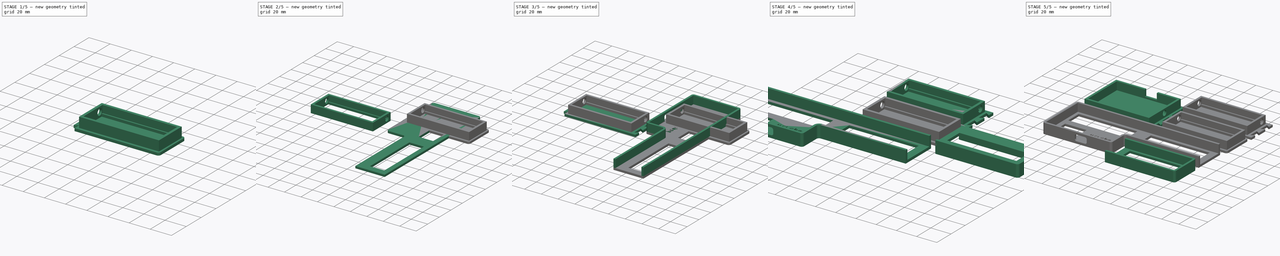
[diagram: build sequence overview — one tinted view per stage of 5, left to right]
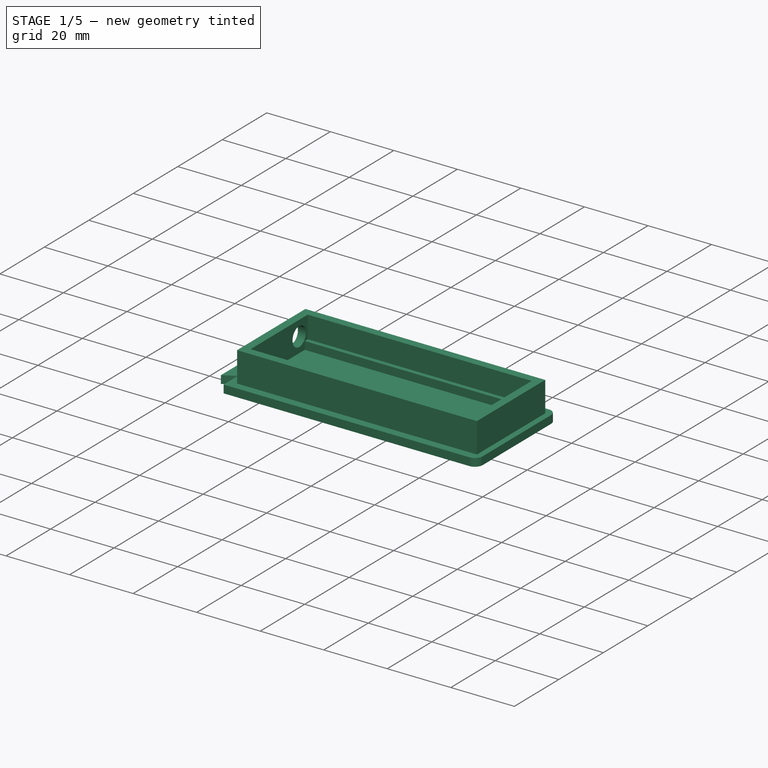
[diagram: stage 1 of 5 — iso view after this stage's code; geometry added in this stage tinted green]
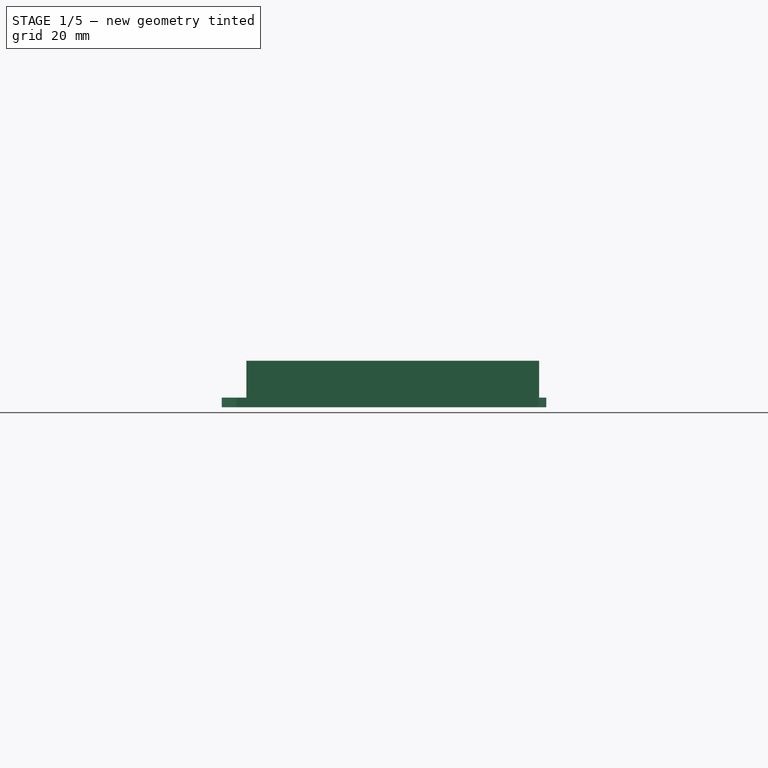
[diagram: stage 1 of 5 — front view after this stage's code; geometry added in this stage tinted green]
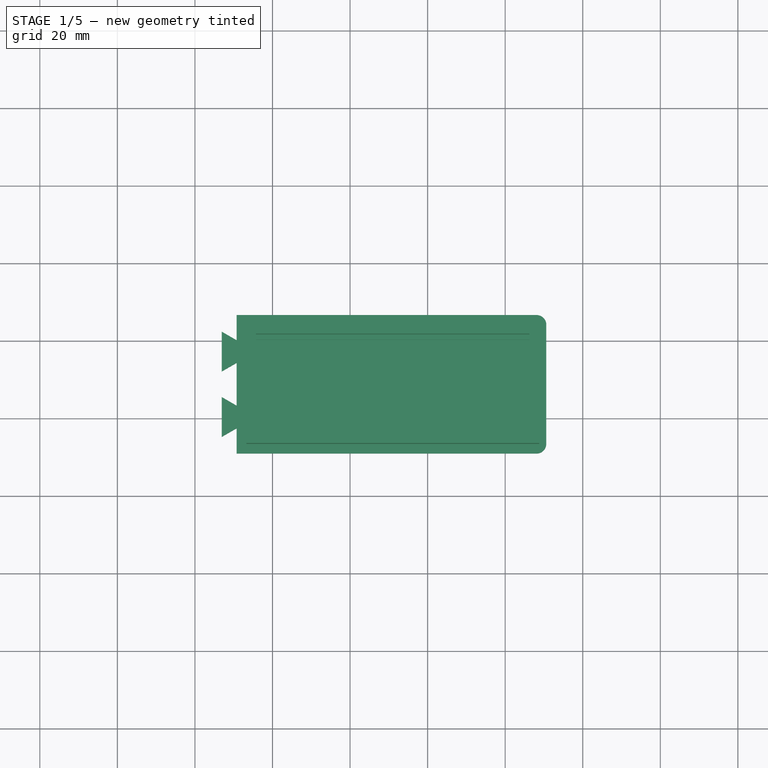
[diagram: stage 1 of 5 — top view after this stage's code; geometry added in this stage tinted green]
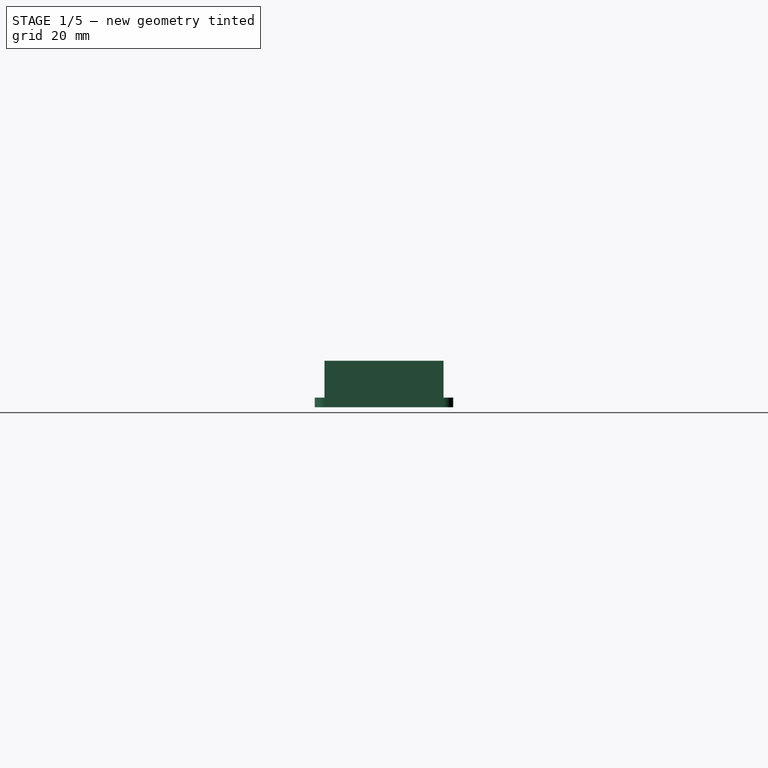
[diagram: stage 1 of 5 — right view after this stage's code; geometry added in this stage tinted green]
FCSTD DOCUMENT  (FreeCAD 1.1R40077 (Git))
Label: case
License: Creative Commons Attribution-NonCommercial-ShareAlike 4.0
LicenseURL: https://creativecommons.org/licenses/by-nc-sa/4.0/
objects: Sketcher::SketchObject×20, PartDesign::Pad×12, App::Point×9, PartDesign::Pocket×9, PartDesign::Body×9, PartDesign::Thickness×5, Part::Fuse×4, Part::Part2DObjectPython×1
note: 132 computed .brp shape members not serialized (recipe doc carries the construction recipe); baked Part::Feature solids carry a one-line shape summary decoded from their .brp

FEATURE [App::Point] Origin061
  Role = Origin
FEATURE [App::Point] Origin063
  Role = Origin
FEATURE [Sketcher::SketchObject] Sketch047
  ArcFitTolerance = 1e-06
  ExternalTypes = [0]
  FullyConstrained = false
  MakeInternals = false
  MapMode = 5
  Placement = pos=(0,0,0) rot=(1,0,0;3.14159rad)
  sketch-geometry (23):
    g0: LineSegment StartX=-40.2502 StartY=30.15 StartZ=0 EndX=37.1 EndY=30.15 EndZ=0
    g1: LineSegment StartX=37.1 StartY=65.85 StartZ=0 EndX=-40.25 EndY=65.85 EndZ=0
    g2: LineSegment [constr] StartX=0 StartY=0 StartZ=0 EndX=39.6 EndY=0 EndZ=0
    g3: LineSegment [constr] StartX=39.6 StartY=0 StartZ=0 EndX=39.6 EndY=30.15 EndZ=0
    g4: LineSegment [constr] StartX=39.6 StartY=30.15 StartZ=0 EndX=0 EndY=30.15 EndZ=0
    g5: LineSegment [constr] StartX=0 StartY=30.15 StartZ=0 EndX=0 EndY=0 EndZ=0
    g6: LineSegment StartX=-40.25 StartY=65.85 StartZ=0 EndX=-40.25 EndY=59.35 EndZ=0
    g7: LineSegment StartX=-40.25 StartY=59.35 StartZ=0 EndX=-44.1 EndY=61.5728 EndZ=0
    g8: LineSegment StartX=-44.1 StartY=61.5728 StartZ=0 EndX=-44.1 EndY=51.2923 EndZ=0
    g9: LineSegment [constr] StartX=-44.1 StartY=61.5728 StartZ=0 EndX=-40.25 EndY=61.5728 EndZ=0
    g10: LineSegment StartX=-44.1 StartY=51.2923 StartZ=0 EndX=-40.25 EndY=53.5151 EndZ=0
    g11: LineSegment StartX=-40.25 StartY=42.4851 StartZ=0 EndX=-44.1002 EndY=44.7077 EndZ=0
    g12: LineSegment StartX=-44.1002 StartY=44.7077 StartZ=0 EndX=-44.1002 EndY=34.4272 EndZ=0
    g13: LineSegment StartX=-44.1002 StartY=34.4272 StartZ=0 EndX=-40.2502 EndY=36.65 EndZ=0
    g14: LineSegment StartX=-40.2502 StartY=36.65 StartZ=0 EndX=-40.2502 EndY=30.15 EndZ=0
    g15: LineSegment [constr] StartX=-40.25 StartY=59.35 StartZ=0 EndX=-40.25 EndY=53.5151 EndZ=0
    g16: LineSegment [constr] StartX=-40.2502 StartY=42.7348 StartZ=0 EndX=-40.2502 EndY=36.65 EndZ=0
    g17: LineSegment StartX=-40.25 StartY=53.5151 StartZ=0 EndX=-40.25 EndY=42.4851 EndZ=0
    g18: LineSegment StartX=39.6 StartY=63.35 StartZ=0 EndX=39.6 EndY=32.65 EndZ=0
    g19: ArcOfCircle CenterX=37.1 CenterY=63.35 CenterZ=0 NormalX=0 NormalY=0 NormalZ=1 AngleXU=0 Radius=2.5 StartAngle=1.483e-13 EndAngle=1.5708
    g20: GeomPoint [constr] X=39.6 Y=65.85 Z=0
    g21: ArcOfCircle CenterX=37.1 CenterY=32.65 CenterZ=0 NormalX=0 NormalY=0 NormalZ=1 AngleXU=0 Radius=2.5 StartAngle=4.71239 EndAngle=6.28319
    g22: GeomPoint [constr] X=39.6 Y=30.15 Z=0
  constraints (60):
    c: Horizontal(g0)
    c: Horizontal(g1)
    c: Coincident(g2,g3)
    c: Coincident(g3,g4)
    c: Coincident(g4,g5)
    c: Coincident(g5,g2)
    c: Horizontal(g2)
    c: Horizontal(g4)
    c: Vertical(g3)
    c: Vertical(g5)
    c: Coincident(g2,g-1)
    c: Coincident(g3,g22)
    c: DistanceX(g2,g2) = 39.6
    c: DistanceY(g5,g5) = 30.15
    c: DistanceY(g22,g20) = 35.7
    c: Coincident(g6,g1)
    c: Vertical(g6)
    c: DistanceY(g6,g6) = 6.5
    c: Coincident(g7,g6)
    c: Angle(g6,g7) = 1.0472
    c: Coincident(g8,g7)
    c: Vertical(g8)
    c: Coincident(g9,g7)
    c: PointOnObject(g9,g6)
    c: Perpendicular(g6,g9)
    c: DistanceX(g9,g9) = 3.85
    c: Coincident(g10,g8)
    c: Coincident(g12,g11)
    c: Coincident(g13,g12)
    c: Coincident(g14,g13)
    c: Coincident(g14,g0)
    c: Vertical(g14)
    c: Equal(g7,g10)
    c: Equal(g10,g11)
    c: Equal(g11,g13)
    c: Angle(g10,g8) = 1.0472
    c: Angle(g13,g14) = 1.0472
    c: DistanceX(g1,g20) = 79.85
    c: Coincident(g15,g6)
    c: Coincident(g15,g10)
    c: Coincident(g16,g13)
    c: Vertical(g16)
    c: Equal(g14,g6)
    c: Equal(g8,g12)
    c: Coincident(g17,g10)
    c: Coincident(g17,g11)
    c: Vertical(g17)
    c: DistanceY(g17,g17) = 11.03
    c: Parallel(g12,g8)
    c: Vertical(g18)
    c: PointOnObject(g20,g1)
    c: PointOnObject(g20,g18)
    c: Tangent(g1,g19) = -1.5708
    c: Tangent(g18,g19) = 1.5708
    c: PointOnObject(g22,g0)
    c: PointOnObject(g22,g18)
    c: Tangent(g0,g21) = -1.5708
    c: Tangent(g18,g21) = 1.5708
    c: Equal(g21,g19)
    c: Radius(g19) = 2.5
FEATURE [PartDesign::Pad] Pad040
  Direction = (0,-1e-16,-1)
  Length = 2.5
  Length2 = 10
  Placement = pos=(0,0,0) rot=(1,0,0;3.14159rad)
  Profile = -> Sketch047
  ReferenceAxis = -> Sketch047 [N_Axis]
  Refine = true
  Suppressed = false
  Type = 0
FEATURE [PartDesign::Body] Body013
  AllowCompound = false
  Group = -> [Sketch047,Pad040]
  Origin = -> Origin060
  Placement = pos=(84.5,36.85,0) rot=(0,0,1;0rad)
  Tip = -> Pad040
FEATURE [Sketcher::SketchObject] Sketch048
  ArcFitTolerance = 1e-06
  AttachmentSupport = -> [XY_Plane031]
  ExternalTypes = [0]
  FullyConstrained = true
  MakeInternals = false
  MapMode = 5
  sketch-geometry (8):
    g0: LineSegment [constr] StartX=0 StartY=0 StartZ=0 EndX=-35.25 EndY=0 EndZ=0
    g1: LineSegment [constr] StartX=-35.25 StartY=0 StartZ=0 EndX=-35.25 EndY=-35.15 EndZ=0
    g2: LineSegment [constr] StartX=-35.25 StartY=-35.15 StartZ=0 EndX=0 EndY=-35.15 EndZ=0
    g3: LineSegment [constr] StartX=0 StartY=-35.15 StartZ=0 EndX=0 EndY=0 EndZ=0
    g4: LineSegment StartX=-35.25 StartY=-35.15 StartZ=0 EndX=-35.25 EndY=-60.85 EndZ=0
    g5: LineSegment StartX=-35.25 StartY=-60.85 StartZ=0 EndX=35.25 EndY=-60.85 EndZ=0
    g6: LineSegment StartX=35.25 StartY=-60.85 StartZ=0 EndX=35.25 EndY=-35.15 EndZ=0
    g7: LineSegment StartX=35.25 StartY=-35.15 StartZ=0 EndX=-35.25 EndY=-35.15 EndZ=0
  constraints (22):
    c: Coincident(g0,g1)
    c: Coincident(g1,g2)
    c: Coincident(g2,g3)
    c: Coincident(g3,g0)
    c: Horizontal(g0)
    c: Horizontal(g2)
    c: Vertical(g1)
    c: Vertical(g3)
    c: Coincident(g0,g-1)
    c: DistanceX(g2,g2) = 35.25
    c: DistanceY(g1,g1) = 35.15
    c: Coincident(g4,g5)
    c: Coincident(g5,g6)
    c: Coincident(g6,g7)
    c: Coincident(g7,g4)
    c: Vertical(g4)
    c: Vertical(g6)
    c: Horizontal(g5)
    c: Horizontal(g7)
    c: Coincident(g4,g1)
    c: DistanceX(g7,g7) = 70.5
    c: DistanceY(g4,g4) = 25.7
FEATURE [PartDesign::Pad] Pad041
  Direction = (0,0,1)
  Length = 9.5
  Length2 = 10
  Profile = -> Sketch048
  ReferenceAxis = -> Sketch048 [N_Axis]
  Refine = true
  Suppressed = false
  Type = 0
FEATURE [Sketcher::SketchObject] Sketch050
  ArcFitTolerance = 1e-06
  AttachmentSupport = -> [XY_Plane031]
  ExternalTypes = [0,0]
  FullyConstrained = false
  MakeInternals = false
  MapMode = 5
  sketch-geometry (8):
    g0: LineSegment StartX=-35.25 StartY=-35 StartZ=0 EndX=-35.25 EndY=-36.5 EndZ=0
    g1: LineSegment StartX=-35.25 StartY=-36.5 StartZ=0 EndX=35.25 EndY=-36.5 EndZ=0
    g2: LineSegment StartX=35.25 StartY=-36.5 StartZ=0 EndX=35.25 EndY=-35 EndZ=0
    g3: LineSegment StartX=35.25 StartY=-35 StartZ=0 EndX=-35.25 EndY=-35 EndZ=0
    g4: LineSegment [constr] StartX=-35.25 StartY=-35 StartZ=0 EndX=0 EndY=-35 EndZ=0
    g5: LineSegment [constr] StartX=0 StartY=-35 StartZ=0 EndX=0 EndY=0 EndZ=0
    g6: LineSegment [constr] StartX=0 StartY=0 StartZ=0 EndX=-35.25 EndY=0 EndZ=0
    g7: LineSegment [constr] StartX=-35.25 StartY=0 StartZ=0 EndX=-35.25 EndY=-35 EndZ=0
  constraints (21):
    c: Coincident(g0,g1)
    c: Coincident(g1,g2)
    c: Coincident(g2,g3)
    c: Coincident(g3,g0)
    c: Vertical(g0)
    c: Vertical(g2)
    c: Horizontal(g1)
    c: Horizontal(g3)
    c: DistanceY(g0,g0) = 1.5
    c: DistanceX(g3,g3) = 70.5
    c: Coincident(g4,g5)
    c: Coincident(g5,g6)
    c: Coincident(g6,g7)
    c: Coincident(g7,g4)
    c: Horizontal(g4)
    c: Horizontal(g6)
    c: Vertical(g5)
    c: Vertical(g7)
    c: Coincident(g4,g0)
    c: Coincident(g5,g-1)
    c: DistanceY(g7,g7) = 35
FEATURE [PartDesign::Thickness] Thickness005
  Base = -> Pad041 [Face6,Face5]
  BaseFeature = -> Pad041
  Intersection = true
  Join = 1
  Mode = 0
  Refine = true
  SupportTransform = false
  Suppressed = false
  Value = 2.5
FEATURE [Sketcher::SketchObject] Sketch049
  ArcFitTolerance = 1e-06
  AttachmentSupport = -> [Thickness005]
  ExternalTypes = [0]
  FullyConstrained = true
  MakeInternals = false
  MapMode = 5
  Placement = pos=(-37.75,0,0) rot=(0.57735,-0.57735,-0.57735;2.0944rad)
  sketch-geometry (3):
    g0: Circle CenterX=39 CenterY=4.75 CenterZ=0 NormalX=0 NormalY=0 NormalZ=1 AngleXU=0 Radius=3
    g1: LineSegment [constr] StartX=34.5 StartY=9.5 StartZ=0 EndX=34.5 EndY=4.75 EndZ=0
    g2: LineSegment [constr] StartX=34.5 StartY=4.75 StartZ=0 EndX=39 EndY=4.75 EndZ=0
  constraints (8):
    c: Diameter(g0) = 6
    c: Coincident(g1,g-3)
    c: Symmetric(g-3,g-3,g1)
    c: DistanceY(g-3,g-3) = 9.5
    c: Coincident(g2,g1)
    c: Coincident(g2,g0)
    c: Perpendicular(g1,g2)
    c: DistanceX(g2,g2) = 4.5
FEATURE [PartDesign::Pocket] Pocket011
  BaseFeature = -> Thickness005
  Direction = (1,0,0)
  Length = 5
  Length2 = 5
  Profile = -> Sketch049
  ReferenceAxis = -> Sketch049 [N_Axis]
  Refine = true
  Suppressed = false
  Type = 2
FEATURE [PartDesign::Pad] Pad042
  BaseFeature = -> Pocket011
  Direction = (0,0,1)
  Length = 2.5
  Length2 = 10
  Profile = -> Sketch050
  ReferenceAxis = -> Sketch050 [N_Axis]
  Refine = true
  Suppressed = false
  Type = 0
FEATURE [PartDesign::Body] Body014
  AllowCompound = false
  Group = -> [Sketch048,Pad041,Thickness005,Sketch049,Pocket011,Sketch050,Pad042]
  Origin = -> Origin062
  Placement = pos=(84.5,36.85,0) rot=(0,0,1;0rad)
  Tip = -> Pad042
FEATURE [Part::Fuse] Fusion004  label="Tail"
  Base = -> Body013
  Placement = pos=(6.5,0,0) rot=(0,0,1;0rad)
  Refine = true
  Tool = -> Body014
note: 1 file-system path scrubbed to <path> (originals preserved in the JSON sidecar)
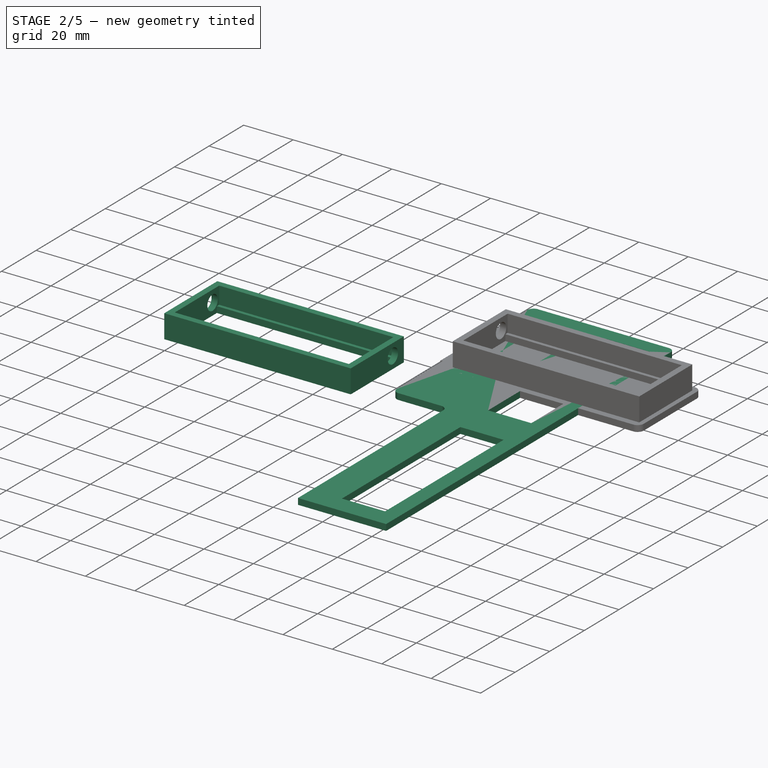
[diagram: stage 2 of 5 — iso view after this stage's code; geometry added in this stage tinted green]
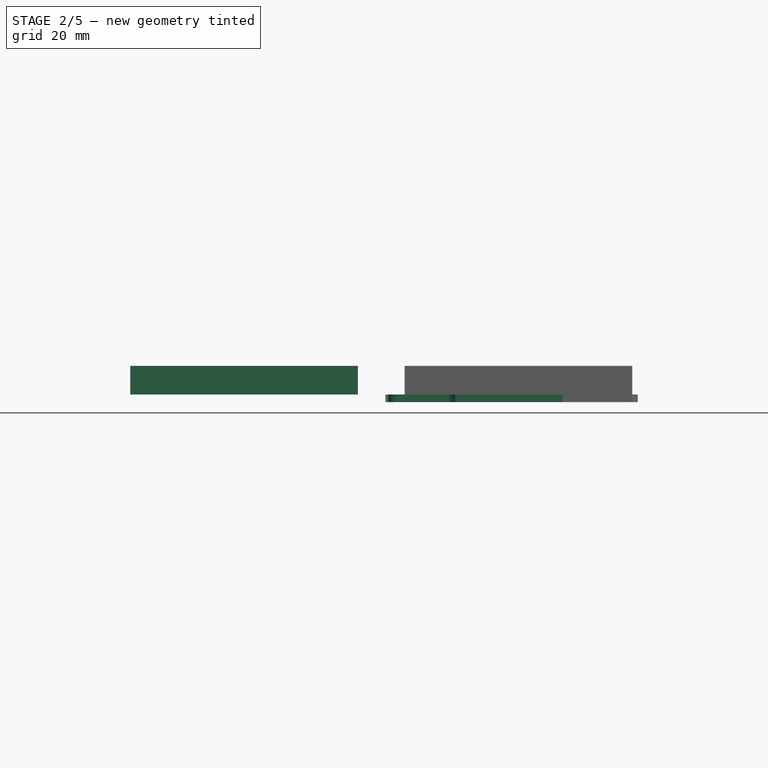
[diagram: stage 2 of 5 — front view after this stage's code; geometry added in this stage tinted green]
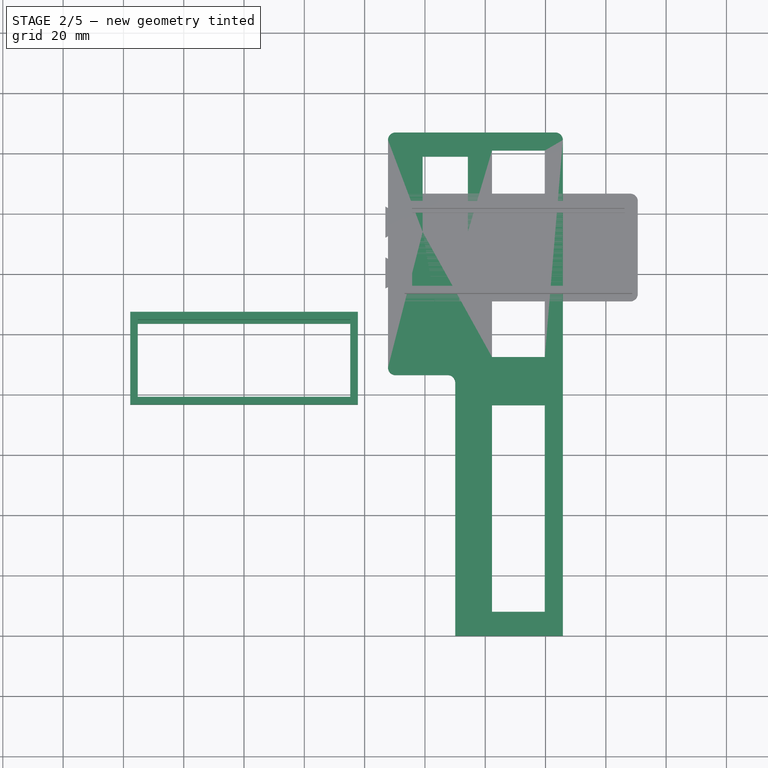
[diagram: stage 2 of 5 — top view after this stage's code; geometry added in this stage tinted green]
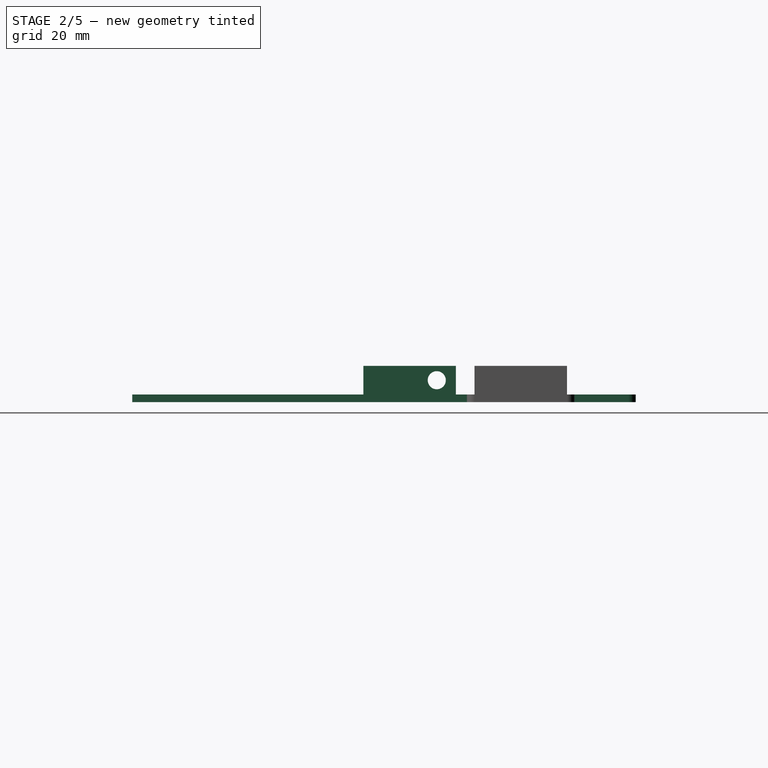
[diagram: stage 2 of 5 — right view after this stage's code; geometry added in this stage tinted green]
FEATURE [PartDesign::Body] Body001
  AllowCompound = false
  Group = -> [Sketch005,Pad002]
  Origin = -> Origin002
  Placement = pos=(84.5,36.85,0) rot=(0,0,1;0rad)
  Tip = -> Pad002
FEATURE [App::Point] Origin005
  Role = Origin
FEATURE [Sketcher::SketchObject] Sketch006
  ArcFitTolerance = 1e-06
  AttachmentSupport = -> [XY_Plane002]
  ExternalTypes = [0]
  FullyConstrained = true
  MakeInternals = false
  MapMode = 5
  sketch-geometry (8):
    g0: LineSegment [constr] StartX=0 StartY=0 StartZ=0 EndX=-35.25 EndY=0 EndZ=0
    g1: LineSegment [constr] StartX=-35.25 StartY=0 StartZ=0 EndX=-35.25 EndY=-35.15 EndZ=0
    g2: LineSegment [constr] StartX=-35.25 StartY=-35.15 StartZ=0 EndX=0 EndY=-35.15 EndZ=0
    g3: LineSegment [constr] StartX=0 StartY=-35.15 StartZ=0 EndX=0 EndY=0 EndZ=0
    g4: LineSegment StartX=-35.25 StartY=-35.15 StartZ=0 EndX=-35.25 EndY=-60.85 EndZ=0
    g5: LineSegment StartX=-35.25 StartY=-60.85 StartZ=0 EndX=35.25 EndY=-60.85 EndZ=0
    g6: LineSegment StartX=35.25 StartY=-60.85 StartZ=0 EndX=35.25 EndY=-35.15 EndZ=0
    g7: LineSegment StartX=35.25 StartY=-35.15 StartZ=0 EndX=-35.25 EndY=-35.15 EndZ=0
  constraints (22):
    c: Coincident(g0,g1)
    c: Coincident(g1,g2)
    c: Coincident(g2,g3)
    c: Coincident(g3,g0)
    c: Horizontal(g0)
    c: Horizontal(g2)
    c: Vertical(g1)
    c: Vertical(g3)
    c: Coincident(g0,g-1)
    c: DistanceX(g2,g2) = 35.25
    c: DistanceY(g1,g1) = 35.15
    c: Coincident(g4,g5)
    c: Coincident(g5,g6)
    c: Coincident(g6,g7)
    c: Coincident(g7,g4)
    c: Vertical(g4)
    c: Vertical(g6)
    c: Horizontal(g5)
    c: Horizontal(g7)
    c: Coincident(g4,g1)
    c: DistanceX(g7,g7) = 70.5
    c: DistanceY(g4,g4) = 25.7
FEATURE [PartDesign::Pad] Pad003
  Direction = (0,0,1)
  Length = 9.5
  Length2 = 10
  Profile = -> Sketch006
  ReferenceAxis = -> Sketch006 [N_Axis]
  Refine = true
  Suppressed = false
  Type = 0
FEATURE [PartDesign::Thickness] Thickness001
  Base = -> Pad003 [Face6,Face5]
  BaseFeature = -> Pad003
  Intersection = true
  Join = 1
  Mode = 0
  Refine = true
  SupportTransform = false
  Suppressed = false
  Value = 2.5
FEATURE [Sketcher::SketchObject] Sketch007
  ArcFitTolerance = 1e-06
  AttachmentSupport = -> [Thickness001]
  ExternalTypes = [0]
  FullyConstrained = true
  MakeInternals = false
  MapMode = 5
  Placement = pos=(-37.75,0,0) rot=(0.57735,-0.57735,-0.57735;2.0944rad)
  sketch-geometry (3):
    g0: Circle CenterX=39 CenterY=4.75 CenterZ=0 NormalX=0 NormalY=0 NormalZ=1 AngleXU=0 Radius=3
    g1: LineSegment [constr] StartX=34.5 StartY=9.5 StartZ=0 EndX=34.5 EndY=4.75 EndZ=0
    g2: LineSegment [constr] StartX=34.5 StartY=4.75 StartZ=0 EndX=39 EndY=4.75 EndZ=0
  constraints (8):
    c: Diameter(g0) = 6
    c: Coincident(g1,g-3)
    c: Symmetric(g-3,g-3,g1)
    c: DistanceY(g-3,g-3) = 9.5
    c: Coincident(g2,g1)
    c: Coincident(g2,g0)
    c: Perpendicular(g1,g2)
    c: DistanceX(g2,g2) = 4.5
FEATURE [PartDesign::Pocket] Pocket002
  BaseFeature = -> Thickness001
  Direction = (1,0,0)
  Length = 5
  Length2 = 5
  Profile = -> Sketch007
  ReferenceAxis = -> Sketch007 [N_Axis]
  Refine = true
  Suppressed = false
  Type = 1
FEATURE [PartDesign::Body] Body
  AllowCompound = false
  Group = -> [Sketch,Pad,Thickness,Sketch001,Pad001,Sketch002,Sketch003,Pocket001,Pocket]
  Origin = -> Origin
  Tip = -> Pocket
FEATURE [Sketcher::SketchObject] Sketch030
  ArcFitTolerance = 1e-06
  AttachmentSupport = -> [XY_Plane006]
  ExternalTypes = [0]
  FullyConstrained = true
  MakeInternals = false
  MapMode = 5
  sketch-geometry (19):
    g0: LineSegment [constr] StartX=0 StartY=0 StartZ=0 EndX=47.75 EndY=0 EndZ=0
    g1: LineSegment [constr] StartX=47.75 StartY=0 StartZ=0 EndX=47.75 EndY=27 EndZ=0
    g2: LineSegment [constr] StartX=47.75 StartY=27 StartZ=0 EndX=0 EndY=27 EndZ=0
    g3: LineSegment [constr] StartX=0 StartY=27 StartZ=0 EndX=0 EndY=0 EndZ=0
    g4: LineSegment StartX=47.75 StartY=24.5 StartZ=0 EndX=47.75 EndY=-51 EndZ=0
    g5: LineSegment StartX=103.25 StartY=27 StartZ=0 EndX=50.25 EndY=27 EndZ=0
    g6: ArcOfCircle CenterX=103.25 CenterY=24.5 CenterZ=0 NormalX=0 NormalY=0 NormalZ=1 AngleXU=0 Radius=2.5 StartAngle=1e-16 EndAngle=1.5708
    g7: ArcOfCircle CenterX=50.25 CenterY=24.5 CenterZ=0 NormalX=0 NormalY=0 NormalZ=1 AngleXU=0 Radius=2.5 StartAngle=1.5708 EndAngle=3.14159
    g8: GeomPoint [constr] X=47.75 Y=27 Z=0
    g9: LineSegment StartX=70.05 StartY=-56 StartZ=0 EndX=70.05 EndY=-140 EndZ=0
    g10: LineSegment StartX=105.75 StartY=-56 StartZ=0 EndX=105.75 EndY=-140 EndZ=0
    g11: LineSegment StartX=70.05 StartY=-140 StartZ=0 EndX=105.75 EndY=-140 EndZ=0
    g12: LineSegment StartX=105.75 StartY=24.5 StartZ=0 EndX=105.75 EndY=-56 EndZ=0
    g13: LineSegment [constr] StartX=105.75 StartY=24.5 StartZ=0 EndX=47.75 EndY=24.5 EndZ=0
    g14: LineSegment StartX=50.25 StartY=-53.5 StartZ=0 EndX=67.55 EndY=-53.5 EndZ=0
    g15: ArcOfCircle CenterX=67.55 CenterY=-56 CenterZ=0 NormalX=0 NormalY=0 NormalZ=1 AngleXU=0 Radius=2.5 StartAngle=0 EndAngle=1.5708
    g16: GeomPoint [constr] X=70.05 Y=-53.5 Z=0
    g17: ArcOfCircle CenterX=50.25 CenterY=-51 CenterZ=0 NormalX=0 NormalY=0 NormalZ=1 AngleXU=0 Radius=2.5 StartAngle=3.14159 EndAngle=4.71239
    g18: GeomPoint [constr] X=47.75 Y=-53.5 Z=0
  constraints (48):
    c: Coincident(g0,g1)
    c: Coincident(g1,g2)
    c: Coincident(g2,g3)
    c: Coincident(g3,g0)
    c: Horizontal(g0)
    c: Horizontal(g2)
    c: Vertical(g1)
    c: Vertical(g3)
    c: Coincident(g0,g-1)
    c: DistanceY(g3,g3) = 27
    c: DistanceX(g2,g2) = 47.75
    c: Vertical(g4)
    c: Horizontal(g5)
    c: Coincident(g8,g1)
    c: Tangent(g5,g6) = -1.5708
    c: PointOnObject(g8,g4)
    c: PointOnObject(g8,g5)
    c: Tangent(g4,g7) = -1.5708
    c: Tangent(g5,g7) = -1.5708
    c: DistanceY(g18,g4) = 78
    c: Vertical(g9)
    c: Vertical(g10)
    c: Coincident(g11,g9)
    c: Coincident(g11,g10)
    c: DistanceX(g11,g11) = 35.7
    c: DistanceY(g9,g16) = 86.5
    c: Coincident(g12,g6)
    c: Vertical(g12)
    c: DistanceX(g5,g5) = 53
    c: DistanceY(g12,g12) = 80.5
    c: Equal(g6,g7)
    c: Perpendicular(g9,g11)
    c: Coincident(g13,g6)
    c: Coincident(g13,g4)
    c: Horizontal(g13)
    c: Coincident(g10,g12)
    c: Perpendicular(g4,g14)
    c: PointOnObject(g16,g14)
    c: PointOnObject(g16,g9)
    c: Tangent(g14,g15) = 1.5708
    c: Tangent(g9,g15) = 1.5708
    c: Equal(g15,g7)
    c: Radius(g7) = 2.5
    c: PointOnObject(g18,g14)
    c: PointOnObject(g18,g4)
    c: Tangent(g14,g17) = -1.5708
    c: Tangent(g4,g17) = -1.5708
    c: Equal(g17,g15)
FEATURE [PartDesign::Pad] Pad030
  Direction = (0,0,1)
  Length = 2.5
  Length2 = 10
  Profile = -> Sketch030
  ReferenceAxis = -> Sketch030 [N_Axis]
  Refine = true
  Reversed = true
  Suppressed = false
  Type = 0
FEATURE [Sketcher::SketchObject] Sketch032
  ArcFitTolerance = 1e-06
  AttachmentSupport = -> [Pad030]
  ExternalGeometry = -> [Pad030]
  ExternalTypes = [0,0,0]
  FullyConstrained = false
  MakeInternals = false
  MapMode = 5
  sketch-geometry (30):
    g0: LineSegment [constr] StartX=99.75 StartY=27 StartZ=0 EndX=99.75 EndY=21 EndZ=0
    g1: LineSegment [constr] StartX=99.75 StartY=21 StartZ=0 EndX=105.75 EndY=21 EndZ=0
    g2: LineSegment StartX=74.25 StartY=19 StartZ=0 EndX=59.25 EndY=19 EndZ=0
    g3: LineSegment StartX=59.25 StartY=19 StartZ=0 EndX=59.25 EndY=-6 EndZ=0
    g4: LineSegment StartX=59.25 StartY=-6 StartZ=0 EndX=74.25 EndY=-6 EndZ=0
    g5: LineSegment StartX=74.25 StartY=-6 StartZ=0 EndX=74.25 EndY=19 EndZ=0
    g6: LineSegment StartX=82.25 StartY=21 StartZ=0 EndX=82.25 EndY=-47.5 EndZ=0
    g7: LineSegment StartX=99.75 StartY=-47.5 StartZ=0 EndX=99.75 EndY=21 EndZ=0
    g8: LineSegment StartX=99.75 StartY=21 StartZ=0 EndX=82.25 EndY=21 EndZ=0
    g9: LineSegment [constr] StartX=47.75 StartY=19 StartZ=0 EndX=59.25 EndY=19 EndZ=0
    g10: LineSegment [constr] StartX=59.25 StartY=27 StartZ=0 EndX=59.25 EndY=19 EndZ=0
    g11: LineSegment [constr] StartX=99.75 StartY=-47.5 StartZ=0 EndX=82.25 EndY=-47.5 EndZ=0
    g12: LineSegment [constr] StartX=82.25 StartY=-47.5 StartZ=0 EndX=99.75 EndY=-47.5 EndZ=0
    g13: LineSegment [constr] StartX=99.75 StartY=-47.5 StartZ=0 EndX=99.75 EndY=-53 EndZ=0
    g14: LineSegment [constr] StartX=99.75 StartY=-53 StartZ=0 EndX=82.25 EndY=-53 EndZ=0
    g15: LineSegment [constr] StartX=82.25 StartY=-53 StartZ=0 EndX=82.25 EndY=-47.5 EndZ=0
    g16: LineSegment [constr] StartX=82.25 StartY=-53 StartZ=0 EndX=99.75 EndY=-53 EndZ=0
    g17: LineSegment [constr] StartX=99.75 StartY=-53 StartZ=0 EndX=99.75 EndY=-56 EndZ=0
    g18: LineSegment [constr] StartX=99.75 StartY=-56 StartZ=0 EndX=82.25 EndY=-56 EndZ=0
    g19: LineSegment [constr] StartX=82.25 StartY=-56 StartZ=0 EndX=82.25 EndY=-53 EndZ=0
    g20: LineSegment [constr] StartX=82.25 StartY=-56 StartZ=0 EndX=99.75 EndY=-56 EndZ=0
    g21: LineSegment [constr] StartX=59.25 StartY=19 StartZ=0 EndX=99.75 EndY=19 EndZ=0
    g22: LineSegment StartX=82.25 StartY=-63.5 StartZ=0 EndX=99.75 EndY=-63.5 EndZ=0
    g23: LineSegment StartX=99.75 StartY=-63.5 StartZ=0 EndX=99.75 EndY=-132 EndZ=0
    g24: LineSegment StartX=99.75 StartY=-132 StartZ=0 EndX=82.25 EndY=-132 EndZ=0
    g25: LineSegment StartX=82.25 StartY=-132 StartZ=0 EndX=82.25 EndY=-63.5 EndZ=0
    g26: LineSegment [constr] StartX=82.25 StartY=-132 StartZ=0 EndX=99.25 EndY=-132 EndZ=0
    g27: LineSegment StartX=82.25 StartY=-47.5 StartZ=0 EndX=99.75 EndY=-47.5 EndZ=0
    g28: LineSegment [constr] StartX=99.25 StartY=-55.5 StartZ=0 EndX=82.25 EndY=-56 EndZ=0
    g29: LineSegment [constr] StartX=82.25 StartY=-56 StartZ=0 EndX=82.25 EndY=-63.5 EndZ=0
  constraints (81):
    c: Horizontal(g1)
    c: Vertical(g0)
    c: DistanceY(g0,g0) = 6
    c: DistanceX(g1,g1) = 6
    c: Coincident(g2,g3)
    c: Coincident(g3,g4)
    c: Coincident(g4,g5)
    c: Coincident(g5,g2)
    c: Horizontal(g2)
    c: Horizontal(g4)
    c: Vertical(g3)
    c: Vertical(g5)
    c: DistanceY(g5,g5) = 25
    c: DistanceX(g2,g2) = 15
    c: Coincident(g7,g8)
    c: Coincident(g8,g6)
    c: Vertical(g6)
    c: Vertical(g7)
    c: Horizontal(g8)
    c: DistanceX(g8,g8) = 17.5
    c: Coincident(g7,g0)
    c: Coincident(g1,g0)
    c: Horizontal(g9)
    c: DistanceX(g9,g9) = 11.5
    c: Coincident(g10,g9)
    c: Vertical(g10)
    c: Coincident(g2,g9)
    c: DistanceY(g10,g10) = 8
    c: PointOnObject(g1,g-4)
    c: PointOnObject(g0,g-3)
    c: PointOnObject(g10,g-3)
    c: PointOnObject(g9,g-5)
    c: Horizontal(g11)
    c: Coincident(g12,g13)
    c: Coincident(g13,g14)
    c: Coincident(g14,g15)
    c: Coincident(g15,g12)
    c: Horizontal(g14)
    c: Vertical(g13)
    c: Vertical(g15)
    c: Coincident(g12,g11)
    c: DistanceY(g13,g13) = 5.5
    c: Coincident(g16,g17)
    c: Coincident(g17,g18)
    c: Coincident(g18,g19)
    c: Coincident(g19,g16)
    c: Horizontal(g16)
    c: Horizontal(g18)
    c: Vertical(g17)
    c: Vertical(g19)
    c: Coincident(g16,g14)
    c: PointOnObject(g17,g13)
    c: DistanceY(g17,g17) = 3
    c: Coincident(g20,g18)
    c: Coincident(g21,g2)
    c: PointOnObject(g21,g7)
    c: Horizontal(g21)
    c: Coincident(g22,g23)
    c: Coincident(g23,g24)
    c: Coincident(g24,g25)
    c: Coincident(g25,g22)
    c: Horizontal(g22)
    c: Horizontal(g24)
    c: Vertical(g23)
    c: Vertical(g25)
    c: Horizontal(g26)
    c: Coincident(g26,g24)
    c: Coincident(g27,g6)
    c: Coincident(g27,g7)
    c: DistanceY(g6,g6) = 68.5
    c: Coincident(g11,g6)
    c: Coincident(g11,g7)
    c: Equal(g6,g25)
    c: Coincident(g12,g7)
    c: Coincident(g20,g17)
    c: Coincident(g28,g18)
    c: Equal(g27,g22)
    c: Coincident(g29,g18)
    c: Vertical(g29)
    c: DistanceY(g29,g29) = 7.5
    c: Coincident(g22,g29)
FEATURE [PartDesign::Pocket] Pocket005
  BaseFeature = -> Pad030
  Direction = (0,0,-1)
  Length = 5
  Length2 = 5
  Profile = -> Sketch032
  ReferenceAxis = -> Sketch032 [N_Axis]
  Refine = true
  Suppressed = false
  Type = 0
FEATURE [Sketcher::SketchObject] Sketch046
  ArcFitTolerance = 1e-06
  AttachmentSupport = -> [XY_Plane002]
  ExternalTypes = [0,0]
  FullyConstrained = false
  MakeInternals = false
  MapMode = 5
  sketch-geometry (8):
    g0: LineSegment StartX=-35.25 StartY=-35 StartZ=0 EndX=-35.25 EndY=-36.5 EndZ=0
    g1: LineSegment StartX=-35.25 StartY=-36.5 StartZ=0 EndX=35.25 EndY=-36.5 EndZ=0
    g2: LineSegment StartX=35.25 StartY=-36.5 StartZ=0 EndX=35.25 EndY=-35 EndZ=0
    g3: LineSegment StartX=35.25 StartY=-35 StartZ=0 EndX=-35.25 EndY=-35 EndZ=0
    g4: LineSegment [constr] StartX=-35.25 StartY=-35 StartZ=0 EndX=0 EndY=-35 EndZ=0
    g5: LineSegment [constr] StartX=0 StartY=-35 StartZ=0 EndX=0 EndY=0 EndZ=0
    g6: LineSegment [constr] StartX=0 StartY=0 StartZ=0 EndX=-35.25 EndY=0 EndZ=0
    g7: LineSegment [constr] StartX=-35.25 StartY=0 StartZ=0 EndX=-35.25 EndY=-35 EndZ=0
  constraints (21):
    c: Coincident(g0,g1)
    c: Coincident(g1,g2)
    c: Coincident(g2,g3)
    c: Coincident(g3,g0)
    c: Vertical(g0)
    c: Vertical(g2)
    c: Horizontal(g1)
    c: Horizontal(g3)
    c: DistanceY(g0,g0) = 1.5
    c: DistanceX(g3,g3) = 70.5
    c: Coincident(g4,g5)
    c: Coincident(g5,g6)
    c: Coincident(g6,g7)
    c: Coincident(g7,g4)
    c: Horizontal(g4)
    c: Horizontal(g6)
    c: Vertical(g5)
    c: Vertical(g7)
    c: Coincident(g4,g0)
    c: Coincident(g5,g-1)
    c: DistanceY(g7,g7) = 35
FEATURE [PartDesign::Pad] Pad039
  BaseFeature = -> Pocket002
  Direction = (0,0,1)
  Length = 2.5
  Length2 = 10
  Profile = -> Sketch046
  ReferenceAxis = -> Sketch046 [N_Axis]
  Refine = true
  Suppressed = false
  Type = 0
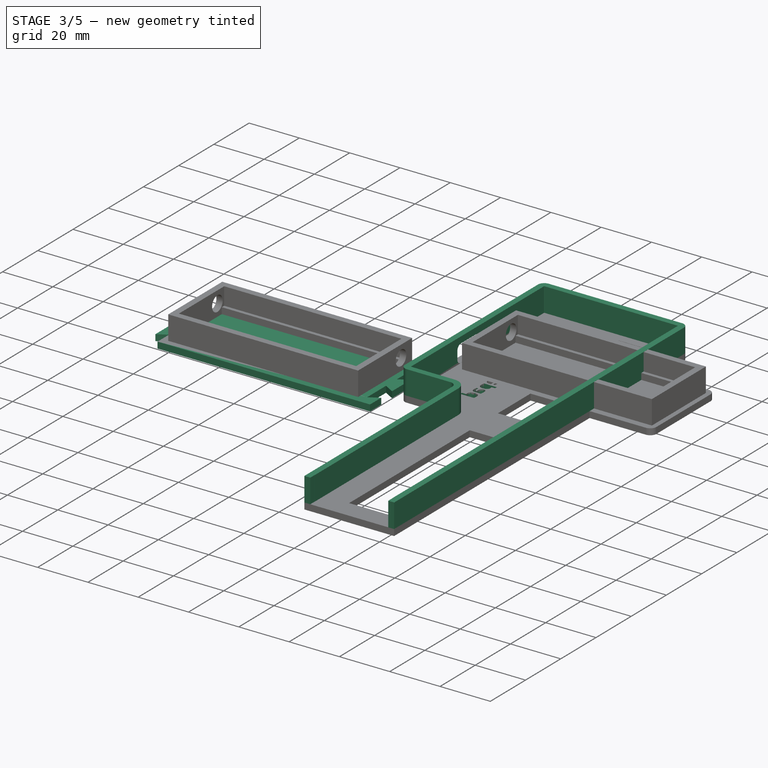
[diagram: stage 3 of 5 — iso view after this stage's code; geometry added in this stage tinted green]
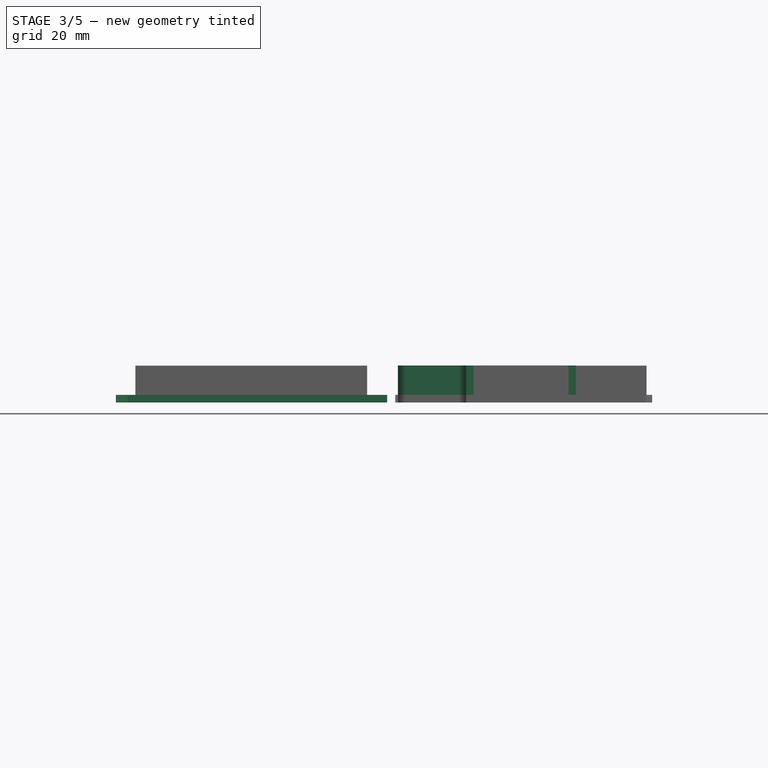
[diagram: stage 3 of 5 — front view after this stage's code; geometry added in this stage tinted green]
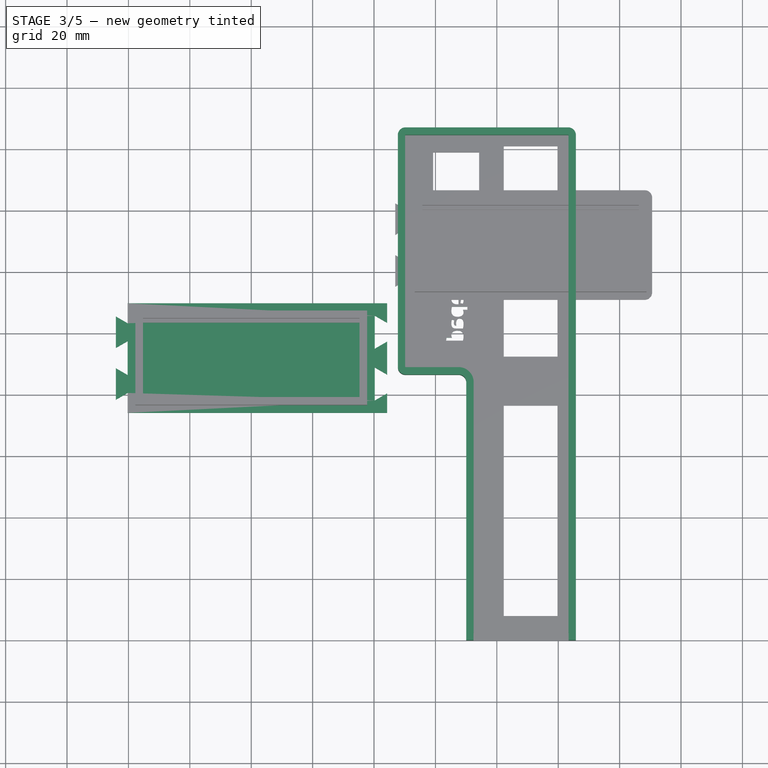
[diagram: stage 3 of 5 — top view after this stage's code; geometry added in this stage tinted green]
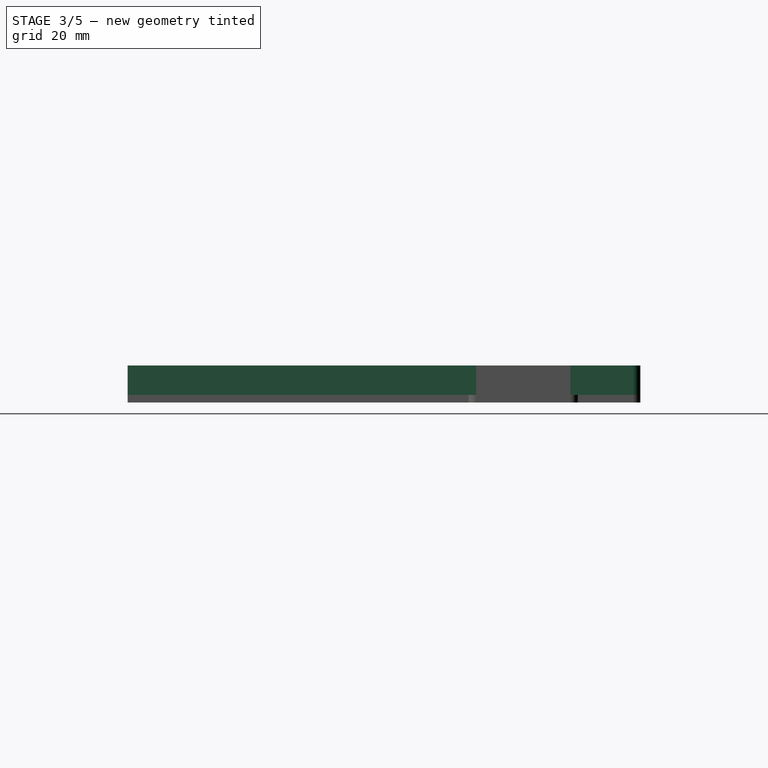
[diagram: stage 3 of 5 — right view after this stage's code; geometry added in this stage tinted green]
FEATURE [App::Point] Origin003
  Role = Origin
FEATURE [Sketcher::SketchObject] Sketch005
  ArcFitTolerance = 1e-06
  ExternalTypes = [0]
  FullyConstrained = false
  MakeInternals = false
  MapMode = 5
  Placement = pos=(0,0,0) rot=(1,0,0;3.14159rad)
  sketch-geometry (34):
    g0: LineSegment StartX=-40.25 StartY=30.15 StartZ=0 EndX=40.25 EndY=30.15 EndZ=0
    g1: LineSegment StartX=40.2519 StartY=65.85 StartZ=0 EndX=-40.2481 EndY=65.85 EndZ=0
    g2: LineSegment [constr] StartX=0 StartY=0 StartZ=0 EndX=40.25 EndY=0 EndZ=0
    g3: LineSegment [constr] StartX=40.25 StartY=0 StartZ=0 EndX=40.25 EndY=30.15 EndZ=0
    g4: LineSegment [constr] StartX=40.25 StartY=30.15 StartZ=0 EndX=0 EndY=30.15 EndZ=0
    g5: LineSegment [constr] StartX=0 StartY=30.15 StartZ=0 EndX=0 EndY=0 EndZ=0
    g6: LineSegment StartX=-40.2481 StartY=65.85 StartZ=0 EndX=-40.2481 EndY=59.35 EndZ=0
    g7: LineSegment StartX=-40.2481 StartY=59.35 StartZ=0 EndX=-44.0981 EndY=61.5728 EndZ=0
    g8: LineSegment StartX=-44.0981 StartY=61.5728 StartZ=0 EndX=-44.0981 EndY=51.2939 EndZ=0
    g9: LineSegment [constr] StartX=-44.0981 StartY=61.5728 StartZ=0 EndX=-40.2481 EndY=61.5728 EndZ=0
    g10: LineSegment StartX=-44.0981 StartY=51.2939 StartZ=0 EndX=-40.2481 EndY=53.5167 EndZ=0
    g11: LineSegment StartX=-40.2481 StartY=42.4867 StartZ=0 EndX=-44.1 EndY=44.7061 EndZ=0
    g12: LineSegment StartX=-44.1 StartY=44.7061 StartZ=0 EndX=-44.1 EndY=34.4272 EndZ=0
    g13: LineSegment StartX=-44.1 StartY=34.4272 StartZ=0 EndX=-40.25 EndY=36.65 EndZ=0
    g14: LineSegment StartX=-40.25 StartY=36.65 StartZ=0 EndX=-40.25 EndY=30.15 EndZ=0
    g15: LineSegment StartX=40.25 StartY=30.15 StartZ=0 EndX=44.25 EndY=30.15 EndZ=0
    g16: LineSegment StartX=40.2519 StartY=65.85 StartZ=0 EndX=44.2519 EndY=65.85 EndZ=0
    g17: LineSegment [constr] StartX=-40.2481 StartY=59.35 StartZ=0 EndX=-40.2481 EndY=53.5167 EndZ=0
    g18: LineSegment [constr] StartX=-40.25 StartY=42.7348 StartZ=0 EndX=-40.25 EndY=36.65 EndZ=0
    g19: LineSegment StartX=44.2519 StartY=65.85 StartZ=0 EndX=44.2519 EndY=59.5 EndZ=0
    g20: LineSegment StartX=44.2519 StartY=59.5 StartZ=0 EndX=40.2519 EndY=61.8094 EndZ=0
    g21: LineSegment StartX=40.2519 StartY=61.8094 StartZ=0 EndX=40.2519 EndY=51.0646 EndZ=0
    g22: LineSegment StartX=40.2519 StartY=51.0646 StartZ=0 EndX=44.25 EndY=53.3729 EndZ=0
    g23: LineSegment StartX=44.25 StartY=53.3729 StartZ=0 EndX=44.25 EndY=42.6282 EndZ=0
    g24: LineSegment StartX=44.25 StartY=42.6282 StartZ=0 EndX=40.2519 EndY=44.9365 EndZ=0
    g25: LineSegment StartX=40.2519 StartY=44.9365 StartZ=0 EndX=40.2519 EndY=34.1917 EndZ=0
    g26: LineSegment StartX=40.2519 StartY=34.1917 StartZ=0 EndX=44.25 EndY=36.5 EndZ=0
    g27: LineSegment StartX=44.25 StartY=36.5 StartZ=0 EndX=44.25 EndY=30.15 EndZ=0
    g28: LineSegment [constr] StartX=40.2519 StartY=65.85 StartZ=0 EndX=40.2519 EndY=61.8094 EndZ=0
    g29: LineSegment [constr] StartX=40.2519 StartY=51.0646 StartZ=0 EndX=40.2519 EndY=44.9365 EndZ=0
    g30: LineSegment [constr] StartX=40.2519 StartY=34.1917 StartZ=0 EndX=40.25 EndY=30.15 EndZ=0
    g31: LineSegment [constr] StartX=44.25 StartY=42.6282 StartZ=0 EndX=44.25 EndY=36.5 EndZ=0
    g32: LineSegment [constr] StartX=44.25 StartY=53.3729 StartZ=0 EndX=44.2519 EndY=59.5 EndZ=0
    g33: LineSegment StartX=-40.2481 StartY=53.5167 StartZ=0 EndX=-40.2481 EndY=42.4867 EndZ=0
  constraints (92):
    c: Horizontal(g0)
    c: Horizontal(g1)
    c: Coincident(g2,g3)
    c: Coincident(g3,g4)
    c: Coincident(g4,g5)
    c: Coincident(g5,g2)
    c: Horizontal(g2)
    c: Horizontal(g4)
    c: Vertical(g3)
    c: Vertical(g5)
    c: Coincident(g2,g-1)
    c: Coincident(g3,g0)
    c: DistanceX(g2,g2) = 40.25
    c: DistanceY(g5,g5) = 30.15
    c: DistanceY(g0,g1) = 35.7
    c: Coincident(g6,g1)
    c: Vertical(g6)
    c: DistanceY(g6,g6) = 6.5
    c: Coincident(g7,g6)
    c: Angle(g6,g7) = 1.0472
    c: Coincident(g8,g7)
    c: Vertical(g8)
    c: Coincident(g9,g7)
    c: PointOnObject(g9,g6)
    c: Perpendicular(g6,g9)
    c: DistanceX(g9,g9) = 3.85
    c: Coincident(g10,g8)
    c: Coincident(g12,g11)
    c: Coincident(g13,g12)
    c: Coincident(g14,g13)
    c: Coincident(g14,g0)
    c: Vertical(g14)
    c: Equal(g7,g10)
    c: Equal(g10,g11)
    c: Equal(g11,g13)
    c: Angle(g10,g8) = 1.0472
    c: Angle(g13,g14) = 1.0472
    c: Coincident(g15,g0)
    c: DistanceX(g1,g1) = 80.5
    c: DistanceX(g15,g15) = 4
    c: Coincident(g16,g1)
    c: Horizontal(g16)
    c: Equal(g16,g15)
    c: Coincident(g17,g6)
    c: Coincident(g17,g10)
    c: Coincident(g18,g13)
    c: Vertical(g18)
    c: Coincident(g19,g16)
    c: Vertical(g19)
    c: DistanceY(g19,g19) = 6.35
    c: Coincident(g20,g19)
    c: Angle(g19,g20) = 1.0472
    c: Coincident(g21,g20)
    c: Vertical(g21)
    c: Coincident(g22,g21)
    c: Coincident(g23,g22)
    c: Vertical(g23)
    c: Coincident(g24,g23)
    c: Coincident(g25,g24)
    c: Vertical(g25)
    c: Coincident(g26,g25)
    c: Coincident(g27,g26)
    c: Coincident(g27,g15)
    c: Vertical(g27)
    c: Angle(g26,g27) = 1.0472
    c: Angle(g23,g24) = 1.0472
    c: Angle(g22,g23) = 1.0472
    c: Coincident(g28,g1)
    c: Coincident(g28,g20)
    c: Perpendicular(g16,g28)
    c: Coincident(g29,g21)
    c: Coincident(g29,g24)
    c: Parallel(g29,g19)
    c: Coincident(g30,g25)
    c: Coincident(g30,g0)
    c: Coincident(g31,g23)
    c: Coincident(g31,g26)
    c: Vertical(g31)
    c: Coincident(g32,g22)
    c: Coincident(g32,g19)
    c: Equal(g21,g23)
    c: Equal(g23,g25)
    c: Equal(g27,g19)
    c: Equal(g14,g6)
    c: Equal(g8,g12)
    c: Equal(g1,g0)
    c: Parallel(g15,g0)
    c: Coincident(g33,g10)
    c: Coincident(g33,g11)
    c: Vertical(g33)
    c: DistanceY(g33,g33) = 11.03
    c: Parallel(g12,g8)
FEATURE [PartDesign::Pad] Pad002
  Direction = (0,-1e-16,-1)
  Length = 2.5
  Length2 = 10
  Placement = pos=(0,0,0) rot=(1,0,0;3.14159rad)
  Profile = -> Sketch005
  ReferenceAxis = -> Sketch005 [N_Axis]
  Refine = true
  Suppressed = false
  Type = 0
FEATURE [PartDesign::Body] Body010
  AllowCompound = false
  Group = -> [Sketch040,Pad036]
  Origin = -> Origin020
  Placement = pos=(0,0,10) rot=(0,0,1;0rad)
  Tip = -> Pad036
FEATURE [App::Point] Origin023
  Role = Origin
FEATURE [Sketcher::SketchObject] Sketch041
  ArcFitTolerance = 1e-06
  AttachmentSupport = -> [XY_Plane011]
  ExternalTypes = [0]
  FullyConstrained = true
  MakeInternals = false
  MapMode = 5
  sketch-geometry (19):
    g0: LineSegment [constr] StartX=0 StartY=0 StartZ=0 EndX=47.75 EndY=0 EndZ=0
    g1: LineSegment [constr] StartX=47.75 StartY=0 StartZ=0 EndX=47.75 EndY=27 EndZ=0
    g2: LineSegment [constr] StartX=47.75 StartY=27 StartZ=0 EndX=0 EndY=27 EndZ=0
    g3: LineSegment [constr] StartX=0 StartY=27 StartZ=0 EndX=0 EndY=0 EndZ=0
    g4: LineSegment StartX=47.75 StartY=24.5 StartZ=0 EndX=47.75 EndY=-51 EndZ=0
    g5: LineSegment StartX=103.25 StartY=27 StartZ=0 EndX=50.25 EndY=27 EndZ=0
    g6: ArcOfCircle CenterX=103.25 CenterY=24.5 CenterZ=0 NormalX=0 NormalY=0 NormalZ=1 AngleXU=0 Radius=2.5 StartAngle=1e-16 EndAngle=1.5708
    g7: ArcOfCircle CenterX=50.25 CenterY=24.5 CenterZ=0 NormalX=0 NormalY=0 NormalZ=1 AngleXU=0 Radius=2.5 StartAngle=1.5708 EndAngle=3.14159
    g8: GeomPoint [constr] X=47.75 Y=27 Z=0
    g9: LineSegment StartX=70.05 StartY=-56 StartZ=0 EndX=70.05 EndY=-140 EndZ=0
    g10: LineSegment StartX=105.75 StartY=-56 StartZ=0 EndX=105.75 EndY=-140 EndZ=0
    g11: LineSegment StartX=70.05 StartY=-140 StartZ=0 EndX=105.75 EndY=-140 EndZ=0
    g12: LineSegment StartX=105.75 StartY=24.5 StartZ=0 EndX=105.75 EndY=-56 EndZ=0
    g13: LineSegment [constr] StartX=105.75 StartY=24.5 StartZ=0 EndX=47.75 EndY=24.5 EndZ=0
    g14: LineSegment StartX=50.25 StartY=-53.5 StartZ=0 EndX=67.55 EndY=-53.5 EndZ=0
    g15: ArcOfCircle CenterX=67.55 CenterY=-56 CenterZ=0 NormalX=0 NormalY=0 NormalZ=1 AngleXU=0 Radius=2.5 StartAngle=0 EndAngle=1.5708
    g16: GeomPoint [constr] X=70.05 Y=-53.5 Z=0
    g17: ArcOfCircle CenterX=50.25 CenterY=-51 CenterZ=0 NormalX=0 NormalY=0 NormalZ=1 AngleXU=0 Radius=2.5 StartAngle=3.14159 EndAngle=4.71239
    g18: GeomPoint [constr] X=47.75 Y=-53.5 Z=0
  constraints (48):
    c: Coincident(g0,g1)
    c: Coincident(g1,g2)
    c: Coincident(g2,g3)
    c: Coincident(g3,g0)
    c: Horizontal(g0)
    c: Horizontal(g2)
    c: Vertical(g1)
    c: Vertical(g3)
    c: Coincident(g0,g-1)
    c: DistanceY(g3,g3) = 27
    c: DistanceX(g2,g2) = 47.75
    c: Vertical(g4)
    c: Horizontal(g5)
    c: Coincident(g8,g1)
    c: Tangent(g5,g6) = -1.5708
    c: PointOnObject(g8,g4)
    c: PointOnObject(g8,g5)
    c: Tangent(g4,g7) = -1.5708
    c: Tangent(g5,g7) = -1.5708
    c: DistanceY(g18,g4) = 78
    c: Vertical(g9)
    c: Vertical(g10)
    c: Coincident(g11,g9)
    c: Coincident(g11,g10)
    c: DistanceX(g11,g11) = 35.7
    c: DistanceY(g9,g16) = 86.5
    c: Coincident(g12,g6)
    c: Vertical(g12)
    c: DistanceX(g5,g5) = 53
    c: DistanceY(g12,g12) = 80.5
    c: Equal(g6,g7)
    c: Perpendicular(g9,g11)
    c: Coincident(g13,g6)
    c: Coincident(g13,g4)
    c: Horizontal(g13)
    c: Coincident(g10,g12)
    c: Perpendicular(g4,g14)
    c: PointOnObject(g16,g14)
    c: PointOnObject(g16,g9)
    c: Tangent(g14,g15) = 1.5708
    c: Tangent(g9,g15) = 1.5708
    c: Equal(g15,g7)
    c: Radius(g7) = 2.5
    c: PointOnObject(g18,g14)
    c: PointOnObject(g18,g4)
    c: Tangent(g14,g17) = -1.5708
    c: Tangent(g4,g17) = -1.5708
    c: Equal(g17,g15)
FEATURE [PartDesign::Pad] Pad037
  Direction = (0,0,1)
  Length = 9.55
  Length2 = 10
  Profile = -> Sketch041
  ReferenceAxis = -> Sketch041 [N_Axis]
  Refine = true
  Suppressed = false
  Type = 0
FEATURE [PartDesign::Thickness] Thickness003
  Base = -> Pad037 [Face10,Face11]
  BaseFeature = -> Pad037
  Intersection = true
  Join = 1
  Mode = 0
  Refine = true
  Reversed = true
  SupportTransform = false
  Suppressed = false
  Value = 2.4
FEATURE [Sketcher::SketchObject] Sketch042
  ArcFitTolerance = 1e-06
  AttachmentSupport = -> [Thickness003]
  ExternalTypes = [0,0]
  FullyConstrained = false
  MakeInternals = false
  MapMode = 5
  Placement = pos=(0,-140,0) rot=(1,0,0;1.5708rad)
  sketch-geometry (6):
    g0: LineSegment [constr] StartX=70.05 StartY=9.55 StartZ=0 EndX=72.4 EndY=9.55 EndZ=0
    g1: LineSegment [constr] StartX=105.75 StartY=9.55 StartZ=0 EndX=103.4 EndY=9.55 EndZ=0
    g2: LineSegment StartX=72.4 StartY=9.55 StartZ=0 EndX=72.4 EndY=0 EndZ=0
    g3: LineSegment StartX=72.4 StartY=0 StartZ=0 EndX=103.4 EndY=0 EndZ=0
    g4: LineSegment StartX=103.4 StartY=0 StartZ=0 EndX=103.4 EndY=9.55 EndZ=0
    g5: LineSegment StartX=103.4 StartY=9.55 StartZ=0 EndX=72.4 EndY=9.55 EndZ=0
  constraints (14):
    c: Horizontal(g0)
    c: Horizontal(g1)
    c: Coincident(g2,g3)
    c: Coincident(g3,g4)
    c: Coincident(g4,g5)
    c: Coincident(g5,g2)
    c: Vertical(g2)
    c: Vertical(g4)
    c: Horizontal(g3)
    c: Coincident(g2,g0)
    c: PointOnObject(g3,g-1)
    c: Coincident(g1,g4)
    c: Equal(g0,g1)
    c: DistanceX(g5,g5) = 31
FEATURE [PartDesign::Pocket] Pocket007
  BaseFeature = -> Thickness003
  Direction = (0,1,0)
  Length = 5
  Length2 = 5
  Profile = -> Sketch042
  ReferenceAxis = -> Sketch042 [N_Axis]
  Refine = true
  Suppressed = false
  Type = 2
FEATURE [Sketcher::SketchObject] Sketch045
  ArcFitTolerance = 1e-06
  AttachmentSupport = -> [Pocket007]
  ExternalGeometry = -> [Pocket007]
  ExternalTypes = [0]
  FullyConstrained = false
  MakeInternals = false
  MapMode = 5
  Placement = pos=(47.75,0,0) rot=(0.57735,-0.57735,-0.57735;2.0944rad)
  sketch-geometry (16):
    g0: LineSegment [constr] StartX=51 StartY=9.55 StartZ=0 EndX=24.7 EndY=9.55 EndZ=0
    g1: LineSegment [constr] StartX=24.7 StartY=9.55 StartZ=0 EndX=24.7 EndY=7.05 EndZ=0
    g2: LineSegment [constr] StartX=24.7 StartY=7.05 StartZ=0 EndX=51 EndY=7.05 EndZ=0
    g3: LineSegment [constr] StartX=51 StartY=7.05 StartZ=0 EndX=51 EndY=9.55 EndZ=0
    g4: LineSegment StartX=22.7 StartY=7.05 StartZ=0 EndX=12.7 EndY=7.05 EndZ=0
    g5: LineSegment StartX=10.7 StartY=5.05 StartZ=0 EndX=10.7 EndY=2.05 EndZ=0
    g6: LineSegment StartX=12.7 StartY=0.05 StartZ=0 EndX=22.7 EndY=0.05 EndZ=0
    g7: LineSegment StartX=24.7 StartY=2.05 StartZ=0 EndX=24.7 EndY=5.05 EndZ=0
    g8: ArcOfCircle CenterX=12.7 CenterY=5.05 CenterZ=0 NormalX=0 NormalY=0 NormalZ=1 AngleXU=0 Radius=2 StartAngle=1.5708 EndAngle=3.14159
    g9: GeomPoint [constr] X=10.7 Y=7.05 Z=0
    g10: ArcOfCircle CenterX=22.7 CenterY=5.05 CenterZ=0 NormalX=0 NormalY=0 NormalZ=1 AngleXU=0 Radius=2 StartAngle=1e-16 EndAngle=1.5708
    g11: GeomPoint [constr] X=24.7 Y=7.05 Z=0
    g12: ArcOfCircle CenterX=22.7 CenterY=2.05 CenterZ=0 NormalX=0 NormalY=0 NormalZ=1 AngleXU=0 Radius=2 StartAngle=4.71239 EndAngle=6.28319
    g13: GeomPoint [constr] X=24.7 Y=0.05 Z=0
    g14: ArcOfCircle CenterX=12.7 CenterY=2.05 CenterZ=0 NormalX=0 NormalY=0 NormalZ=1 AngleXU=0 Radius=2 StartAngle=3.14159 EndAngle=4.71239
    g15: GeomPoint [constr] X=12.2 Y=0 Z=0
  constraints (36):
    c: Coincident(g0,g1)
    c: Coincident(g1,g2)
    c: Coincident(g2,g3)
    c: Coincident(g3,g0)
    c: Horizontal(g0)
    c: Horizontal(g2)
    c: Vertical(g1)
    c: Vertical(g3)
    c: DistanceX(g2,g2) = 26.3
    c: DistanceY(g1,g1) = 2.5
    c: Coincident(g0,g-3)
    c: Horizontal(g4)
    c: Horizontal(g6)
    c: Vertical(g5)
    c: Vertical(g7)
    c: Coincident(g11,g1)
    c: DistanceX(g9,g11) = 14
    c: PointOnObject(g9,g5)
    c: PointOnObject(g9,g4)
    c: Tangent(g5,g8) = -1.5708
    c: Tangent(g4,g8) = -1.5708
    c: PointOnObject(g11,g4)
    c: PointOnObject(g11,g7)
    c: Tangent(g4,g10) = -1.5708
    c: Tangent(g7,g10) = -1.5708
    c: PointOnObject(g13,g7)
    c: PointOnObject(g13,g6)
    c: Tangent(g7,g12) = -1.5708
    c: Tangent(g6,g12) = -1.5708
    c: Tangent(g6,g14) = -1.5708
    c: Tangent(g5,g14) = -1.5708
    c: Equal(g8,g10)
    c: Equal(g10,g12)
    c: Equal(g12,g14)
    c: Radius(g14) = 2
    c: DistanceY(g5,g5) = 3
FEATURE [PartDesign::Pocket] Pocket009
  BaseFeature = -> Pocket007
  Direction = (1,0,0)
  Length = 5
  Length2 = 5
  Profile = -> Sketch045
  ReferenceAxis = -> Sketch045 [N_Axis]
  Refine = true
  Suppressed = false
  Type = 2
FEATURE [PartDesign::Body] Body011
  AllowCompound = false
  Group = -> [Sketch041,Pad037,Thickness003,Sketch042,Pocket007,Sketch045,Pocket009]
  Origin = -> Origin022
  Placement = pos=(-13.25,76.75,10) rot=(-0.707107,0.707107,0;3.14159rad)
  Tip = -> Pocket009
FEATURE [Part::Part2DObjectPython] ShapeString  # Draft 2D object (typed FeaturePython)
  FontFile = <path>
  Fuse = false
  Justification = 6
  JustificationReference = 0
  KeepLeftMargin = false
  MakeFace = true
  ObliqueAngle = 0
  Placement = pos=(69.0718,-14.7718,-2.5) rot=(0.71,-0.71,0;3.14159rad)
  ScaleToSize = true
  Size = 5
  String = Wirepad
  Tracking = 0
FEATURE [PartDesign::Pocket] Pocket010
  BaseFeature = -> Pocket005
  Direction = (1e-16,1e-16,1)
  Length = 5
  Length2 = 5
  Profile = -> ShapeString
  ReferenceAxis = -> ShapeString [N_Axis]
  Refine = true
  Suppressed = false
  Type = 2
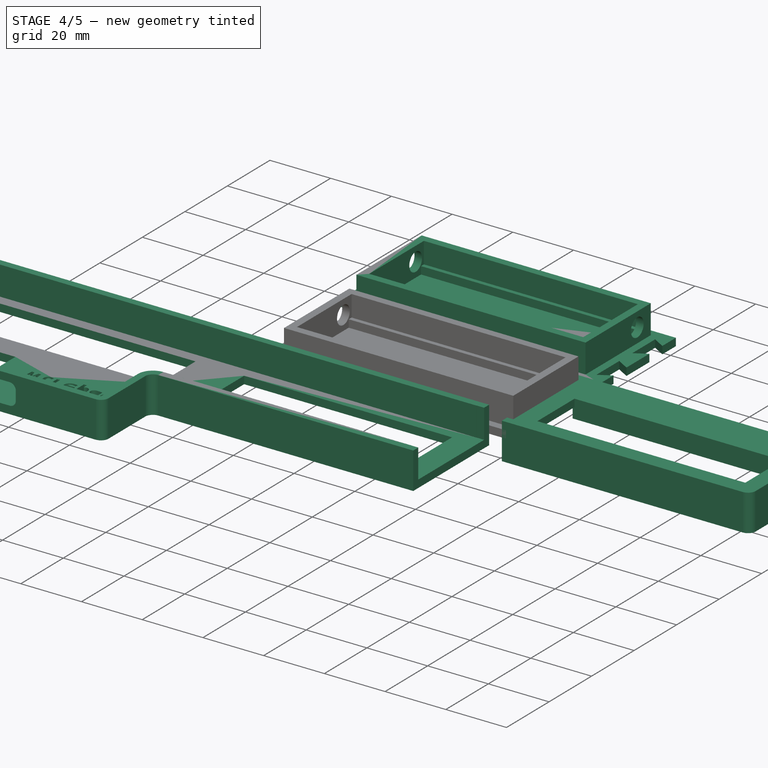
[diagram: stage 4 of 5 — iso view after this stage's code; geometry added in this stage tinted green]
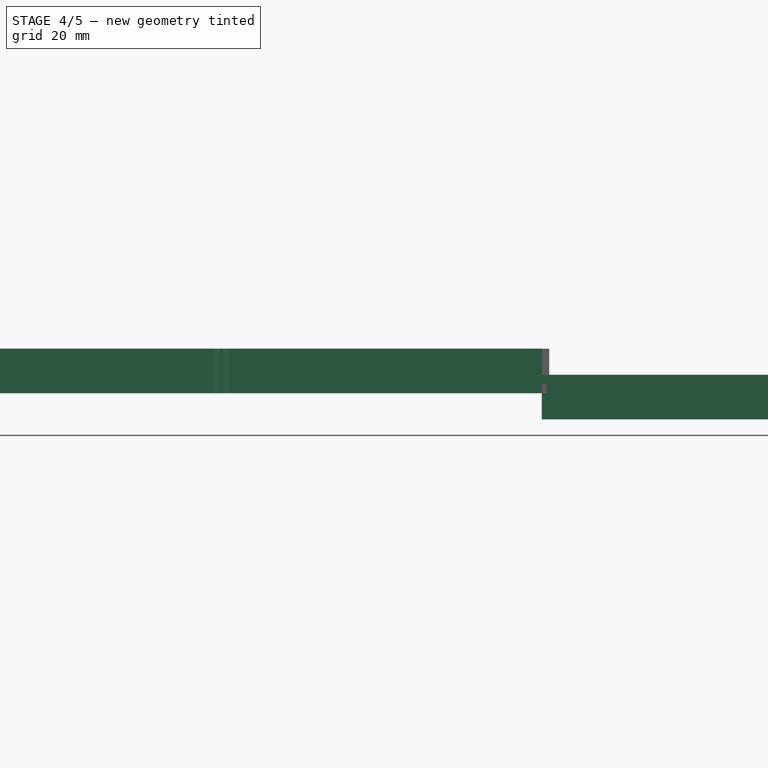
[diagram: stage 4 of 5 — front view after this stage's code; geometry added in this stage tinted green]
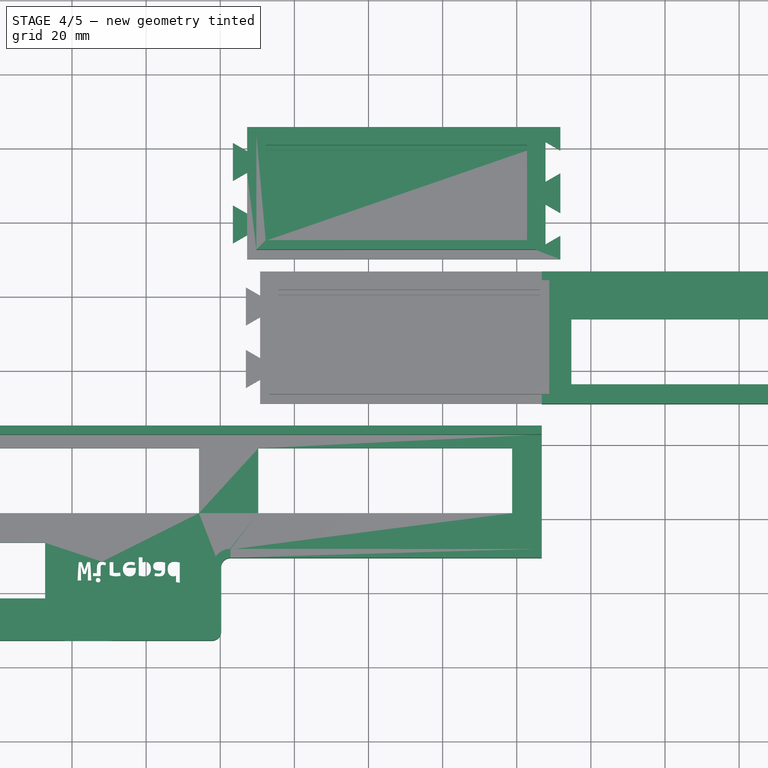
[diagram: stage 4 of 5 — top view after this stage's code; geometry added in this stage tinted green]
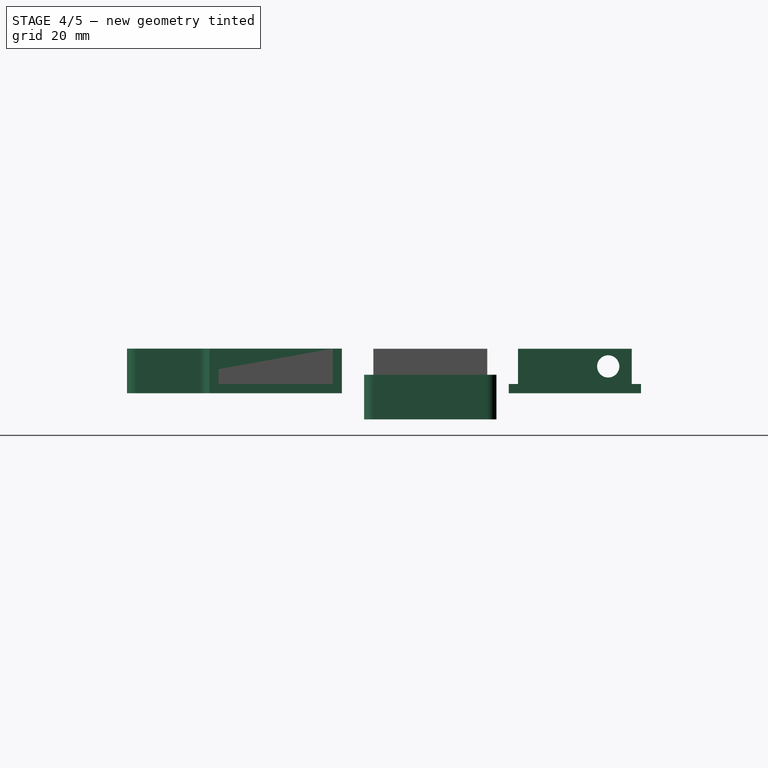
[diagram: stage 4 of 5 — right view after this stage's code; geometry added in this stage tinted green]
FEATURE [App::Point] Origin013
  Role = Origin
FEATURE [App::Point] Origin021
  Role = Origin
FEATURE [Sketcher::SketchObject] Sketch040
  ArcFitTolerance = 1e-06
  AttachmentSupport = -> [XY_Plane010]
  ExternalTypes = [0]
  FullyConstrained = true
  MakeInternals = false
  MapMode = 5
  sketch-geometry (20):
    g0: LineSegment [constr] StartX=0 StartY=0 StartZ=0 EndX=126.75 EndY=0 EndZ=0
    g1: LineSegment [constr] StartX=126.75 StartY=0 StartZ=0 EndX=126.75 EndY=6.7 EndZ=0
    g2: LineSegment [constr] StartX=126.75 StartY=6.7 StartZ=0 EndX=0 EndY=6.7 EndZ=0
    g3: LineSegment [constr] StartX=0 StartY=6.7 StartZ=0 EndX=0 EndY=0 EndZ=0
    g4: LineSegment StartX=126.75 StartY=6.7 StartZ=0 EndX=126.75 EndY=-29 EndZ=0
    g5: LineSegment StartX=126.75 StartY=-29 StartZ=0 EndX=206.1 EndY=-29 EndZ=0
    g6: LineSegment StartX=208.6 StartY=-26.5 StartZ=0 EndX=208.6 EndY=4.2 EndZ=0
    g7: LineSegment StartX=206.1 StartY=6.7 StartZ=0 EndX=126.75 EndY=6.7 EndZ=0
    g8: ArcOfCircle CenterX=206.1 CenterY=4.2 CenterZ=0 NormalX=0 NormalY=0 NormalZ=1 AngleXU=0 Radius=2.5 StartAngle=2e-16 EndAngle=1.5708
    g9: GeomPoint [constr] X=208.6 Y=6.7 Z=0
    g10: ArcOfCircle CenterX=206.1 CenterY=-26.5 CenterZ=0 NormalX=0 NormalY=0 NormalZ=1 AngleXU=0 Radius=2.5 StartAngle=4.71239 EndAngle=6.28319
    g11: GeomPoint [constr] X=208.6 Y=-29 Z=0
    g12: LineSegment [constr] StartX=126.75 StartY=-29 StartZ=0 EndX=134.75 EndY=-29 EndZ=0
    g13: LineSegment [constr] StartX=134.75 StartY=-29 StartZ=0 EndX=134.75 EndY=-23.75 EndZ=0
    g14: LineSegment [constr] StartX=134.75 StartY=-23.75 StartZ=0 EndX=126.75 EndY=-23.75 EndZ=0
    g15: LineSegment [constr] StartX=126.75 StartY=-23.75 StartZ=0 EndX=126.75 EndY=-29 EndZ=0
    g16: LineSegment StartX=134.75 StartY=-23.75 StartZ=0 EndX=203.25 EndY=-23.75 EndZ=0
    g17: LineSegment StartX=203.25 StartY=-23.75 StartZ=0 EndX=203.25 EndY=-6.25 EndZ=0
    g18: LineSegment StartX=203.25 StartY=-6.25 StartZ=0 EndX=134.75 EndY=-6.25 EndZ=0
    g19: LineSegment StartX=134.75 StartY=-6.25 StartZ=0 EndX=134.75 EndY=-23.75 EndZ=0
  constraints (52):
    c: Coincident(g0,g1)
    c: Coincident(g1,g2)
    c: Coincident(g2,g3)
    c: Coincident(g3,g0)
    c: Horizontal(g0)
    c: Horizontal(g2)
    c: Vertical(g1)
    c: Vertical(g3)
    c: Coincident(g0,g-1)
    c: DistanceY(g1,g1) = 6.7
    c: DistanceX(g2,g2) = 126.75
    c: Coincident(g4,g5)
    c: Coincident(g7,g4)
    c: Vertical(g4)
    c: Vertical(g6)
    c: Horizontal(g5)
    c: Horizontal(g7)
    c: Coincident(g4,g1)
    c: DistanceY(g11,g9) = 35.7
    c: DistanceX(g5,g11) = 81.85
    c: PointOnObject(g9,g7)
    c: PointOnObject(g9,g6)
    c: Tangent(g7,g8) = -1.5708
    c: Tangent(g6,g8) = -1.5708
    c: PointOnObject(g11,g6)
    c: PointOnObject(g11,g5)
    c: Tangent(g6,g10) = -1.5708
    c: Tangent(g5,g10) = -1.5708
    c: Equal(g10,g8)
    c: Radius(g8) = 2.5
    c: Coincident(g12,g13)
    c: Coincident(g13,g14)
    c: Coincident(g14,g15)
    c: Coincident(g15,g12)
    c: Horizontal(g12)
    c: Horizontal(g14)
    c: Vertical(g13)
    c: Vertical(g15)
    c: Coincident(g12,g4)
    c: DistanceY(g13,g13) = 5.25
    c: DistanceX(g14,g14) = 8
    c: Coincident(g16,g17)
    c: Coincident(g17,g18)
    c: Coincident(g18,g19)
    c: Coincident(g19,g16)
    c: Horizontal(g16)
    c: Horizontal(g18)
    c: Vertical(g17)
    c: Vertical(g19)
    c: Coincident(g16,g13)
    c: DistanceX(g18,g18) = 68.5
    c: DistanceY(g19,g19) = 17.5
FEATURE [PartDesign::Pad] Pad036
  Direction = (0,0,1)
  Length = 2.5
  Length2 = 10
  Profile = -> Sketch040
  ReferenceAxis = -> Sketch040 [N_Axis]
  Refine = true
  Suppressed = false
  Type = 0
FEATURE [App::Point] Origin025
  Role = Origin
FEATURE [Sketcher::SketchObject] Sketch043
  ArcFitTolerance = 1e-06
  AttachmentSupport = -> [XY_Plane012]
  ExternalTypes = [0]
  FullyConstrained = false
  MakeInternals = false
  MapMode = 5
  sketch-geometry (16):
    g0: LineSegment [constr] StartX=0 StartY=0 StartZ=0 EndX=126.75 EndY=0 EndZ=0
    g1: LineSegment [constr] StartX=126.75 StartY=0 StartZ=0 EndX=126.75 EndY=6.7 EndZ=0
    g2: LineSegment [constr] StartX=126.75 StartY=6.7 StartZ=0 EndX=0 EndY=6.7 EndZ=0
    g3: LineSegment [constr] StartX=0 StartY=6.7 StartZ=0 EndX=0 EndY=0 EndZ=0
    g4: LineSegment StartX=126.75 StartY=6.7 StartZ=0 EndX=126.75 EndY=-29 EndZ=0
    g5: LineSegment StartX=126.75 StartY=-29 StartZ=0 EndX=206.1 EndY=-29 EndZ=0
    g6: LineSegment StartX=208.6 StartY=-26.5 StartZ=0 EndX=208.6 EndY=4.2 EndZ=0
    g7: LineSegment StartX=206.1 StartY=6.7 StartZ=0 EndX=126.75 EndY=6.7 EndZ=0
    g8: ArcOfCircle CenterX=206.1 CenterY=4.2 CenterZ=0 NormalX=0 NormalY=0 NormalZ=1 AngleXU=0 Radius=2.5 StartAngle=0 EndAngle=1.5708
    g9: GeomPoint [constr] X=208.6 Y=6.7 Z=0
    g10: ArcOfCircle CenterX=206.1 CenterY=-26.5 CenterZ=0 NormalX=0 NormalY=0 NormalZ=1 AngleXU=0 Radius=2.5 StartAngle=4.71239 EndAngle=6.28319
    g11: GeomPoint [constr] X=208.6 Y=-29 Z=0
    g12: LineSegment [constr] StartX=126.75 StartY=-29 StartZ=0 EndX=135.25 EndY=-29 EndZ=0
    g13: LineSegment [constr] StartX=135.25 StartY=-29 StartZ=0 EndX=135.25 EndY=-22.5 EndZ=0
    g14: LineSegment [constr] StartX=135.25 StartY=-22.5 StartZ=0 EndX=126.75 EndY=-22.5 EndZ=0
    g15: LineSegment [constr] StartX=126.75 StartY=-22.5 StartZ=0 EndX=126.75 EndY=-29 EndZ=0
  constraints (38):
    c: Coincident(g0,g1)
    c: Coincident(g1,g2)
    c: Coincident(g2,g3)
    c: Coincident(g3,g0)
    c: Horizontal(g0)
    c: Horizontal(g2)
    c: Vertical(g1)
    c: Vertical(g3)
    c: Coincident(g0,g-1)
    c: DistanceY(g1,g1) = 6.7
    c: DistanceX(g2,g2) = 126.75
    c: Coincident(g4,g5)
    c: Coincident(g7,g4)
    c: Vertical(g4)
    c: Vertical(g6)
    c: Horizontal(g5)
    c: Horizontal(g7)
    c: Coincident(g4,g1)
    c: DistanceY(g11,g9) = 35.7
    c: DistanceX(g5,g11) = 81.85
    c: PointOnObject(g9,g7)
    c: PointOnObject(g9,g6)
    c: Tangent(g7,g8) = -1.5708
    c: Tangent(g6,g8) = -1.5708
    c: PointOnObject(g11,g6)
    c: PointOnObject(g11,g5)
    c: Tangent(g6,g10) = -1.5708
    c: Tangent(g5,g10) = -1.5708
    c: Equal(g10,g8)
    c: Radius(g8) = 2.5
    c: Coincident(g12,g13)
    c: Coincident(g14,g15)
    c: Coincident(g15,g12)
    c: Horizontal(g12)
    c: Horizontal(g14)
    c: Vertical(g13)
    c: Vertical(g15)
    c: Coincident(g12,g4)
FEATURE [PartDesign::Pad] Pad038
  Direction = (0,0,1)
  Length = 9.55
  Length2 = 10
  Profile = -> Sketch043
  ReferenceAxis = -> Sketch043 [N_Axis]
  Refine = true
  Reversed = true
  Suppressed = false
  Type = 0
FEATURE [PartDesign::Thickness] Thickness004
  Base = -> Pad038 [Face8,Face7]
  BaseFeature = -> Pad038
  Intersection = true
  Join = 1
  Mode = 0
  Refine = true
  Reversed = true
  SupportTransform = false
  Suppressed = false
  Value = 2.4
FEATURE [Sketcher::SketchObject] Sketch044
  ArcFitTolerance = 1e-06
  AttachmentSupport = -> [Thickness004]
  ExternalTypes = [0,0]
  FullyConstrained = false
  MakeInternals = false
  MapMode = 5
  Placement = pos=(129.15,0,0) rot=(0.57735,0.57735,0.57735;2.0944rad)
  sketch-geometry (4):
    g0: LineSegment StartX=-26.6 StartY=-9.55 StartZ=0 EndX=4.3 EndY=-9.55 EndZ=0
    g1: LineSegment StartX=4.3 StartY=0 StartZ=0 EndX=-26.6 EndY=0 EndZ=0
    g2: LineSegment StartX=-26.6 StartY=0 StartZ=0 EndX=-26.6 EndY=-9.55 EndZ=0
    g3: LineSegment StartX=4.3 StartY=0 StartZ=0 EndX=4.3 EndY=-9.55 EndZ=0
  constraints (8):
    c: Horizontal(g0)
    c: Horizontal(g1)
    c: Coincident(g2,g1)
    c: Coincident(g2,g0)
    c: Vertical(g2)
    c: Coincident(g3,g1)
    c: Coincident(g3,g0)
    c: Vertical(g3)
FEATURE [PartDesign::Pocket] Pocket008
  BaseFeature = -> Thickness004
  Direction = (-1,0,0)
  Length = 5
  Length2 = 5
  Profile = -> Sketch044
  ReferenceAxis = -> Sketch044 [N_Axis]
  Refine = true
  Suppressed = false
  Type = 2
FEATURE [PartDesign::Body] Body006
  AllowCompound = false
  Group = -> [Sketch030,Pad030,Sketch032,Pocket005,ShapeString,Pocket010]
  Origin = -> Origin012
  Placement = pos=(-13.25,76.75,10) rot=(-0.707107,0.707107,0;3.14159rad)
  Tip = -> Pocket010
FEATURE [Part::Fuse] Fusion002  label="Body-Middle-cover"
  Base = -> Body006
  Placement = pos=(0,-64,10) rot=(1,0,0;3.14159rad)
  Refine = true
  Tool = -> Body011
FEATURE [PartDesign::Body] Body002
  AllowCompound = false
  Group = -> [Sketch006,Pad003,Thickness001,Sketch007,Pocket002,Sketch046,Pad039]
  Origin = -> Origin004
  Placement = pos=(84.5,36.85,0) rot=(0,0,1;0rad)
  Tip = -> Pad039
FEATURE [Part::Fuse] Fusion003  label="Middle"
  Base = -> Body001
  Placement = pos=(3,39,0) rot=(0,0,1;0rad)
  Refine = true
  Tool = -> Body002
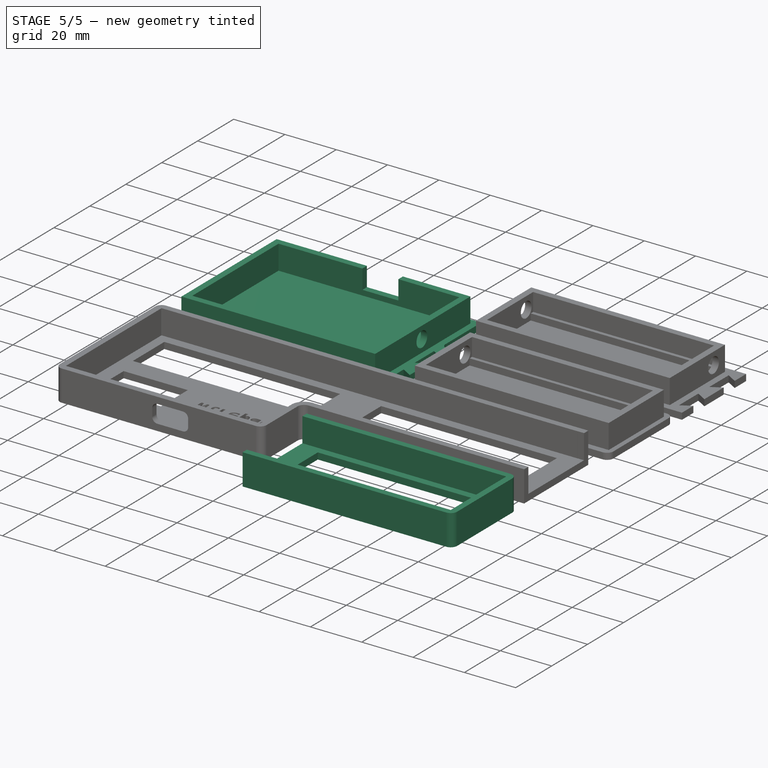
[diagram: stage 5 of 5 — iso view after this stage's code; geometry added in this stage tinted green]
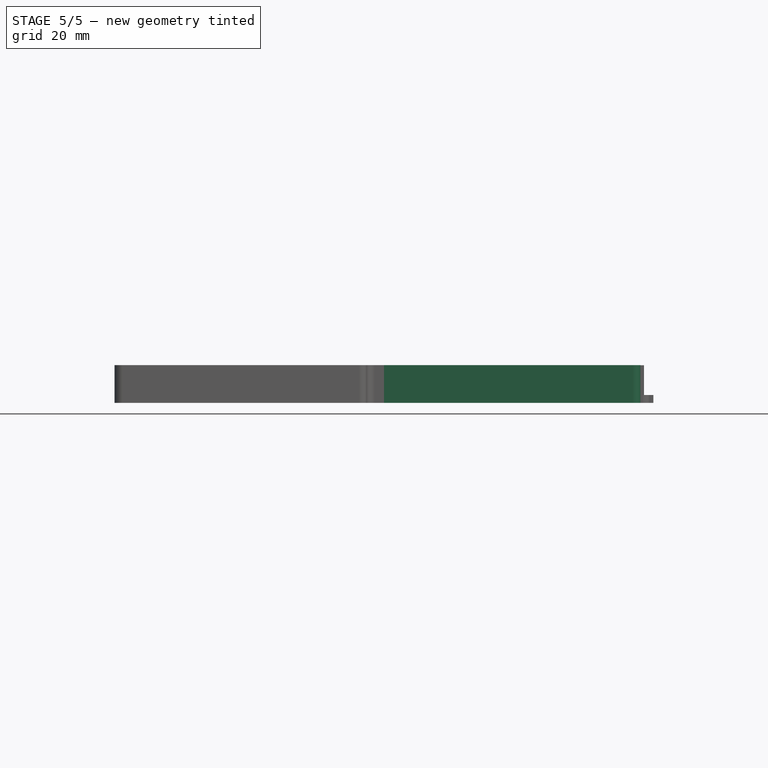
[diagram: stage 5 of 5 — front view after this stage's code; geometry added in this stage tinted green]
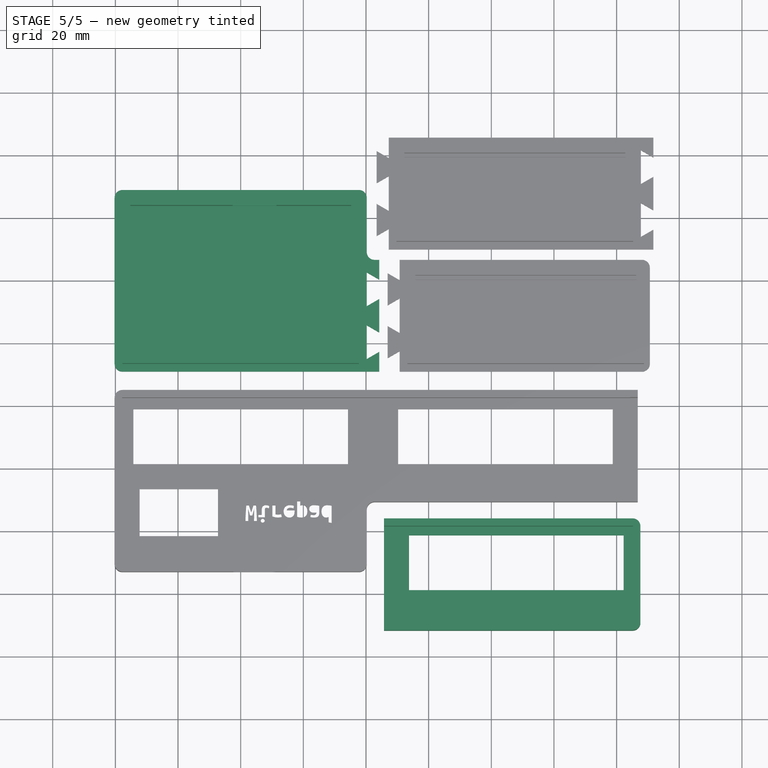
[diagram: stage 5 of 5 — top view after this stage's code; geometry added in this stage tinted green]
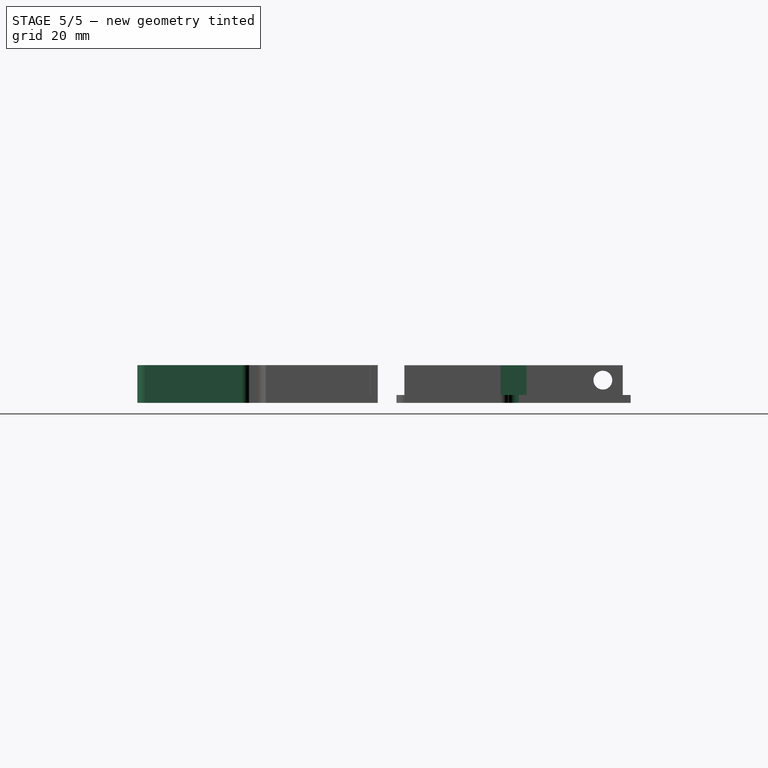
[diagram: stage 5 of 5 — right view after this stage's code; geometry added in this stage tinted green]
FEATURE [App::Point] Origin001
  Role = Origin
FEATURE [Sketcher::SketchObject] Sketch
  ArcFitTolerance = 1e-06
  AttachmentSupport = -> [XY_Plane]
  ExternalTypes = [0]
  FullyConstrained = true
  MakeInternals = false
  MapMode = 5
  sketch-geometry (5):
    g0: LineSegment StartX=-35.25 StartY=-23.985 StartZ=0 EndX=35.25 EndY=-23.985 EndZ=0
    g1: LineSegment StartX=35.25 StartY=-23.985 StartZ=0 EndX=35.25 EndY=23.985 EndZ=0
    g2: LineSegment StartX=35.25 StartY=23.985 StartZ=0 EndX=-35.25 EndY=23.985 EndZ=0
    g3: LineSegment StartX=-35.25 StartY=23.985 StartZ=0 EndX=-35.25 EndY=-23.985 EndZ=0
    g4: GeomPoint [constr] X=0 Y=0 Z=0
  constraints (12):
    c: Coincident(g0,g1)
    c: Coincident(g1,g2)
    c: Coincident(g2,g3)
    c: Coincident(g3,g0)
    c: Horizontal(g0)
    c: Horizontal(g2)
    c: Vertical(g1)
    c: Vertical(g3)
    c: Symmetric(g2,g0,g4)
    c: Coincident(g4,g-1)
    c: DistanceX(g2,g2) = 70.5
    c: DistanceY(g1,g1) = 47.97
FEATURE [PartDesign::Pad] Pad
  Direction = (0,0,1)
  Length = 9.5
  Length2 = 10
  Profile = -> Sketch
  ReferenceAxis = -> Sketch [N_Axis]
  Refine = true
  Suppressed = false
  Type = 0
FEATURE [PartDesign::Thickness] Thickness
  Base = -> Pad [Face6,Face5]
  BaseFeature = -> Pad
  Intersection = false
  Join = 1
  Mode = 0
  Refine = true
  SupportTransform = false
  Suppressed = false
  Value = 2.5
FEATURE [Sketcher::SketchObject] Sketch001
  ArcFitTolerance = 1e-06
  AttachmentSupport = -> [XY_Plane]
  ExternalTypes = [0]
  FullyConstrained = true
  MakeInternals = false
  MapMode = 5
  sketch-geometry (31):
    g0: LineSegment StartX=-40.25 StartY=26.5 StartZ=0 EndX=-40.25 EndY=-26.5 EndZ=0
    g1: LineSegment StartX=-37.75 StartY=-29 StartZ=0 EndX=40.25 EndY=-29 EndZ=0
    g2: LineSegment StartX=40.25 StartY=9.2 StartZ=0 EndX=40.25 EndY=26.5 EndZ=0
    g3: LineSegment StartX=37.75 StartY=29 StartZ=0 EndX=-37.75 EndY=29 EndZ=0
    g4: GeomPoint [constr] X=0 Y=0 Z=0
    g5: ArcOfCircle CenterX=-37.75 CenterY=26.5 CenterZ=0 NormalX=0 NormalY=0 NormalZ=1 AngleXU=0 Radius=2.5 StartAngle=1.5708 EndAngle=3.14159
    g6: GeomPoint [constr] X=-40.25 Y=29 Z=0
    g7: ArcOfCircle CenterX=37.75 CenterY=26.5 CenterZ=0 NormalX=0 NormalY=0 NormalZ=1 AngleXU=0 Radius=2.5 StartAngle=2e-16 EndAngle=1.5708
    g8: GeomPoint [constr] X=40.25 Y=29 Z=0
    g9: ArcOfCircle CenterX=-37.75 CenterY=-26.5 CenterZ=0 NormalX=0 NormalY=0 NormalZ=1 AngleXU=0 Radius=2.5 StartAngle=3.14159 EndAngle=4.71239
    g10: GeomPoint [constr] X=-40.25 Y=-29 Z=0
    g11: LineSegment StartX=42.75 StartY=6.7 StartZ=0 EndX=44.25 EndY=6.7 EndZ=0
    g12: LineSegment StartX=40.25 StartY=-29 StartZ=0 EndX=44.25 EndY=-29 EndZ=0
    g13: LineSegment StartX=44.25 StartY=6.7 StartZ=0 EndX=44.25 EndY=0.35 EndZ=0
    g14: LineSegment StartX=44.25 StartY=0.35 StartZ=0 EndX=40.25 EndY=2.6594 EndZ=0
    g15: LineSegment StartX=40.25 StartY=2.6594 StartZ=0 EndX=40.25 EndY=-8.08647 EndZ=0
    g16: LineSegment StartX=44.25 StartY=-5.77707 StartZ=0 EndX=40.25 EndY=-8.08647 EndZ=0
    g17: LineSegment StartX=44.25 StartY=-5.77707 StartZ=0 EndX=44.25 EndY=-16.5229 EndZ=0
    g18: LineSegment StartX=44.25 StartY=-16.5229 StartZ=0 EndX=40.25 EndY=-14.2135 EndZ=0
    g19: LineSegment StartX=44.25 StartY=-22.65 StartZ=0 EndX=40.25 EndY=-24.9594 EndZ=0
    g20: LineSegment StartX=40.25 StartY=-14.2135 StartZ=0 EndX=40.25 EndY=-24.9594 EndZ=0
    g21: LineSegment StartX=44.25 StartY=-22.65 StartZ=0 EndX=44.25 EndY=-29 EndZ=0
    g22: LineSegment [constr] StartX=0 StartY=0 StartZ=0 EndX=0 EndY=29 EndZ=0
    g23: LineSegment [constr] StartX=0 StartY=29 StartZ=0 EndX=-40.25 EndY=29 EndZ=0
    g24: LineSegment [constr] StartX=-40.25 StartY=29 StartZ=0 EndX=-40.25 EndY=0 EndZ=0
    g25: LineSegment [constr] StartX=-40.25 StartY=0 StartZ=0 EndX=0 EndY=0 EndZ=0
    g26: LineSegment [constr] StartX=44.25 StartY=0.35 StartZ=0 EndX=44.25 EndY=-5.77707 EndZ=0
    g27: LineSegment [constr] StartX=44.25 StartY=-16.5229 StartZ=0 EndX=44.25 EndY=-22.65 EndZ=0
    g28: LineSegment [constr] StartX=40.25 StartY=6.7 StartZ=0 EndX=40.25 EndY=-29 EndZ=0
    g29: ArcOfCircle CenterX=42.75 CenterY=9.2 CenterZ=0 NormalX=0 NormalY=0 NormalZ=1 AngleXU=0 Radius=2.5 StartAngle=3.14159 EndAngle=4.71239
    g30: GeomPoint [constr] X=40.25 Y=6.7 Z=0
  constraints (78):
    c: Vertical(g0)
    c: Vertical(g2)
    c: Horizontal(g1)
    c: Horizontal(g3)
    c: Coincident(g4,g-1)
    c: PointOnObject(g6,g3)
    c: PointOnObject(g6,g0)
    c: Tangent(g3,g5) = -1.5708
    c: Tangent(g0,g5) = -1.5708
    c: PointOnObject(g8,g2)
    c: PointOnObject(g8,g3)
    c: Tangent(g2,g7) = -1.5708
    c: Tangent(g3,g7) = -1.5708
    c: PointOnObject(g10,g1)
    c: PointOnObject(g10,g0)
    c: Tangent(g1,g9) = -1.5708
    c: Tangent(g0,g9) = -1.5708
    c: Radius(g5) = 2.5
    c: Equal(g5,g7)
    c: DistanceY(g0,g0) = 53
    c: DistanceY(g30,g2) = 19.8
    c: Coincident(g12,g1)
    c: DistanceX(g1,g1) = 78
    c: Equal(g5,g9)
    c: Coincident(g13,g11)
    c: Vertical(g13)
    c: DistanceY(g13,g13) = 6.35
    c: Angle(g13,g14) = 1.0472
    c: Coincident(g16,g15)
    c: Coincident(g17,g16)
    c: Coincident(g18,g17)
    c: Coincident(g15,g14)
    c: Coincident(g20,g18)
    c: Coincident(g20,g19)
    c: Coincident(g14,g13)
    c: Equal(g15,g20)
    c: Equal(g20,g17)
    c: Coincident(g21,g19)
    c: Coincident(g21,g12)
    c: Equal(g13,g21)
    c: Angle(g16,g17) = 1.0472
    c: Angle(g19,g21) = 1.0472
    c: Angle(g17,g18) = 1.0472
    c: Coincident(g22,g23)
    c: Coincident(g23,g24)
    c: Coincident(g24,g25)
    c: Coincident(g25,g22)
    c: Vertical(g22)
    c: Vertical(g24)
    c: Horizontal(g23)
    c: Horizontal(g25)
    c: Coincident(g22,g4)
    c: Coincident(g23,g6)
    c: DistanceX(g25,g25) = 40.25
    c: DistanceY(g22,g22) = 29
    c: Coincident(g26,g13)
    c: Coincident(g26,g16)
    c: Vertical(g26)
    c: Coincident(g27,g17)
    c: Coincident(g27,g19)
    c: Vertical(g27)
    c: Parallel(g26,g17)
    c: Coincident(g28,g30)
    c: Coincident(g28,g1)
    c: PointOnObject(g14,g28)
    c: PointOnObject(g15,g28)
    c: PointOnObject(g18,g28)
    c: PointOnObject(g19,g28)
    c: DistanceX(g30,g11) = 4
    c: Perpendicular(g2,g11)
    c: Parallel(g12,g11)
    c: DistanceX(g3,g3) = 75.5
    c: PointOnObject(g30,g11)
    c: PointOnObject(g30,g2)
    c: Tangent(g11,g29) = -1.5708
    c: Tangent(g2,g29) = 1.5708
    c: Equal(g29,g7)
    c: DistanceX(g12,g12) = 4
FEATURE [PartDesign::Pad] Pad001
  BaseFeature = -> Thickness
  Direction = (0,0,1)
  Length = 2.5
  Length2 = 10
  Profile = -> Sketch001
  ReferenceAxis = -> Sketch001 [N_Axis]
  Refine = true
  Reversed = true
  Suppressed = false
  Type = 0
FEATURE [Sketcher::SketchObject] Sketch003
  ArcFitTolerance = 1e-06
  AttachmentSupport = -> [Pad001]
  ExternalTypes = [0]
  FullyConstrained = true
  MakeInternals = false
  MapMode = 5
  Placement = pos=(37.75,0,0) rot=(0.57735,0.57735,0.57735;2.0944rad)
  sketch-geometry (5):
    g0: Circle CenterX=-0.5 CenterY=4.75 CenterZ=0 NormalX=0 NormalY=0 NormalZ=1 AngleXU=0 Radius=3
    g1: LineSegment [constr] StartX=-24.5 StartY=9.5 StartZ=0 EndX=-24.5 EndY=4.75 EndZ=0
    g2: LineSegment [constr] StartX=-24.5 StartY=4.75 StartZ=0 EndX=-0.5 EndY=4.75 EndZ=0
    g3: LineSegment [constr] StartX=-0.5 StartY=4.75 StartZ=0 EndX=-0.5 EndY=9.5 EndZ=0
    g4: LineSegment [constr] StartX=-0.5 StartY=9.5 StartZ=0 EndX=-24.5 EndY=9.5 EndZ=0
  constraints (13):
    c: Diameter(g0) = 6
    c: Coincident(g1,g2)
    c: Coincident(g2,g3)
    c: Coincident(g3,g4)
    c: Coincident(g4,g1)
    c: Vertical(g1)
    c: Vertical(g3)
    c: Horizontal(g2)
    c: Horizontal(g4)
    c: Coincident(g1,g-3)
    c: Coincident(g2,g0)
    c: DistanceX(g4,g4) = 24
    c: DistanceY(g1,g1) = 4.75
FEATURE [PartDesign::Pocket] Pocket001
  BaseFeature = -> Pad001
  Direction = (-1,0,0)
  Length = 5
  Length2 = 5
  Profile = -> Sketch003
  ReferenceAxis = -> Sketch003 [N_Axis]
  Refine = true
  Suppressed = false
  Type = 0
FEATURE [Sketcher::SketchObject] Sketch002
  ArcFitTolerance = 1e-06
  AttachmentSupport = -> [Pad001]
  ExternalTypes = [0]
  FullyConstrained = false
  MakeInternals = false
  MapMode = 5
  Placement = pos=(0,26.485,0) rot=(0,0.707107,0.707107;3.14159rad)
  sketch-geometry (10):
    g0: LineSegment [constr] StartX=0 StartY=2 StartZ=0 EndX=-1.95 EndY=2 EndZ=0
    g1: LineSegment [constr] StartX=0 StartY=2 StartZ=0 EndX=2.55 EndY=2 EndZ=0
    g2: LineSegment StartX=2.55 StartY=2 StartZ=0 EndX=2.55 EndY=9.5 EndZ=0
    g3: LineSegment StartX=2.55 StartY=9.5 StartZ=0 EndX=-11.45 EndY=9.5 EndZ=0
    g4: LineSegment StartX=-11.45 StartY=9.5 StartZ=0 EndX=-11.45 EndY=2 EndZ=0
    g5: LineSegment StartX=-11.45 StartY=2 StartZ=0 EndX=2.55 EndY=2 EndZ=0
    g6: LineSegment [constr] StartX=2.55 StartY=2 StartZ=0 EndX=0 EndY=2 EndZ=0
    g7: LineSegment [constr] StartX=0 StartY=2 StartZ=0 EndX=0 EndY=0 EndZ=0
    g8: LineSegment [constr] StartX=0 StartY=0 StartZ=0 EndX=2.55 EndY=0 EndZ=0
    g9: LineSegment [constr] StartX=2.55 StartY=0 StartZ=0 EndX=2.55 EndY=2 EndZ=0
  constraints (26):
    c: Horizontal(g0)
    c: Coincident(g1,g0)
    c: Horizontal(g1)
    c: Coincident(g2,g3)
    c: Coincident(g3,g4)
    c: Coincident(g4,g5)
    c: Coincident(g5,g2)
    c: Vertical(g2)
    c: Vertical(g4)
    c: Horizontal(g3)
    c: Horizontal(g5)
    c: Coincident(g2,g1)
    c: DistanceX(g5,g5) = 14
    c: DistanceY(g4,g4) = 7.5
    c: Coincident(g6,g7)
    c: Coincident(g7,g8)
    c: Coincident(g8,g9)
    c: Coincident(g9,g6)
    c: Horizontal(g6)
    c: Horizontal(g8)
    c: Vertical(g7)
    c: Vertical(g9)
    c: Coincident(g6,g1)
    c: Coincident(g7,g-1)
    c: DistanceY(g9,g9) = 2
    c: DistanceX(g8,g8) = 2.55
FEATURE [PartDesign::Pocket] Pocket
  BaseFeature = -> Pocket001
  Direction = (0,-1,2e-16)
  Length = 5
  Length2 = 5
  Profile = -> Sketch002
  ReferenceAxis = -> Sketch002 [N_Axis]
  Refine = true
  Suppressed = false
  Type = 2
FEATURE [PartDesign::Body] Body012
  AllowCompound = false
  Group = -> [Sketch043,Pad038,Thickness004,Sketch044,Pocket008]
  Origin = -> Origin024
  Placement = pos=(0,0,10) rot=(0,0,1;0rad)
  Tip = -> Pocket008
FEATURE [Part::Fuse] Fusion  label="Tail-cover"
  Base = -> Body010
  Placement = pos=(-81,-105,10) rot=(1,0,0;3.14159rad)
  Refine = true
  Tool = -> Body012
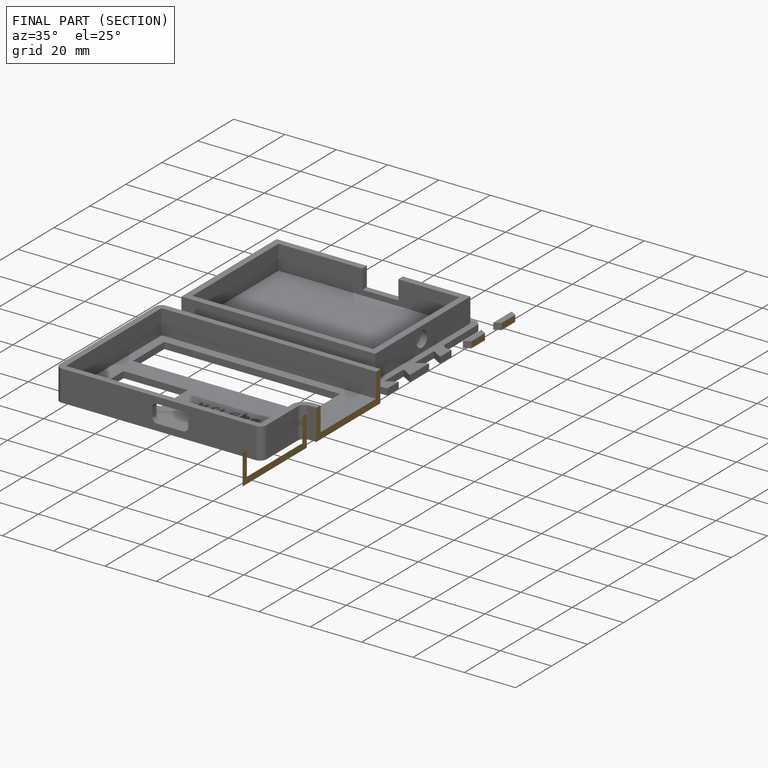
[diagram: finished part — half-section view (interior)]
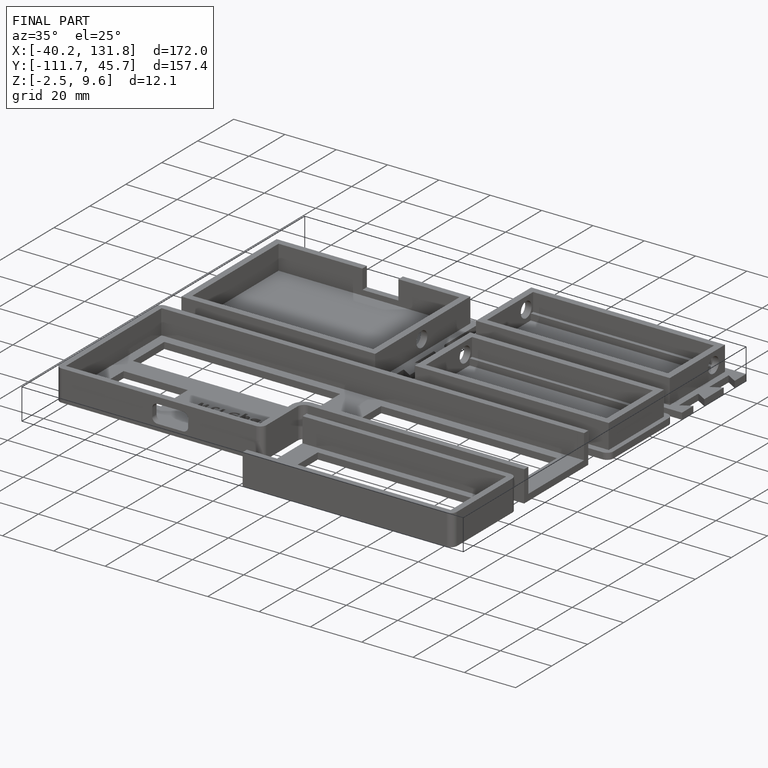
[diagram: finished part — iso view with bounding-box wireframe]
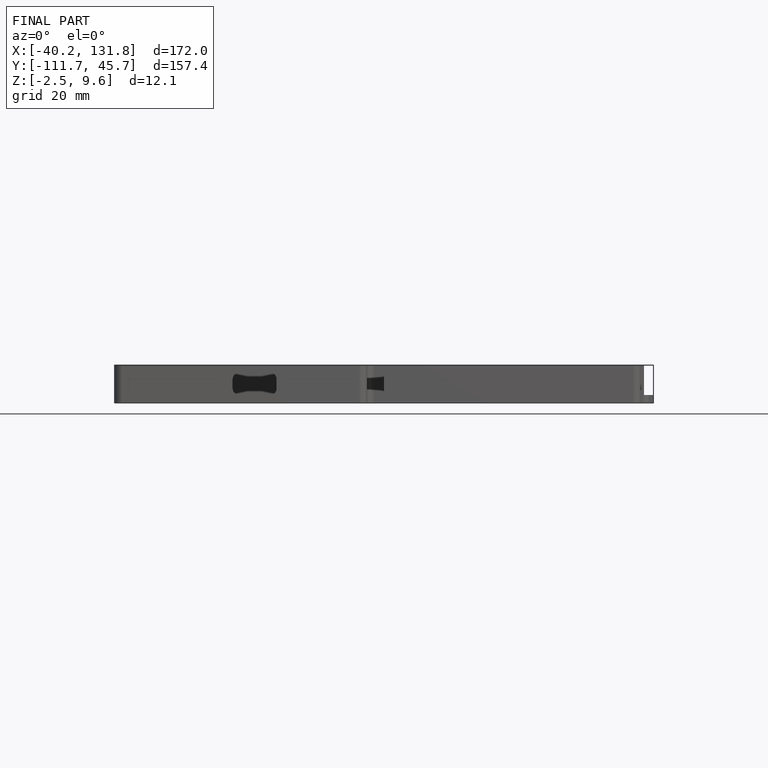
[diagram: finished part — front view with bounding-box wireframe]
